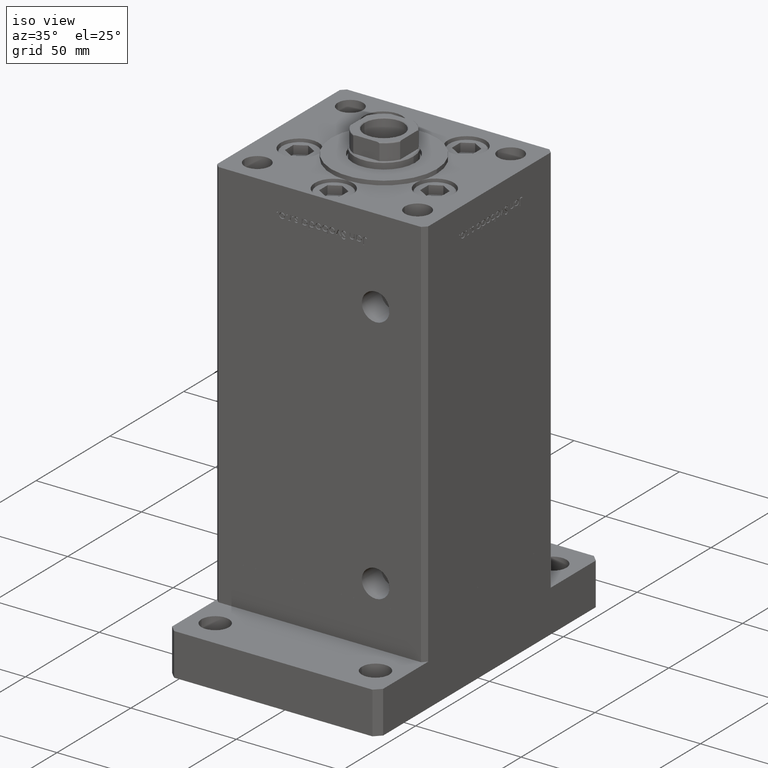
[diagram: clean part render]
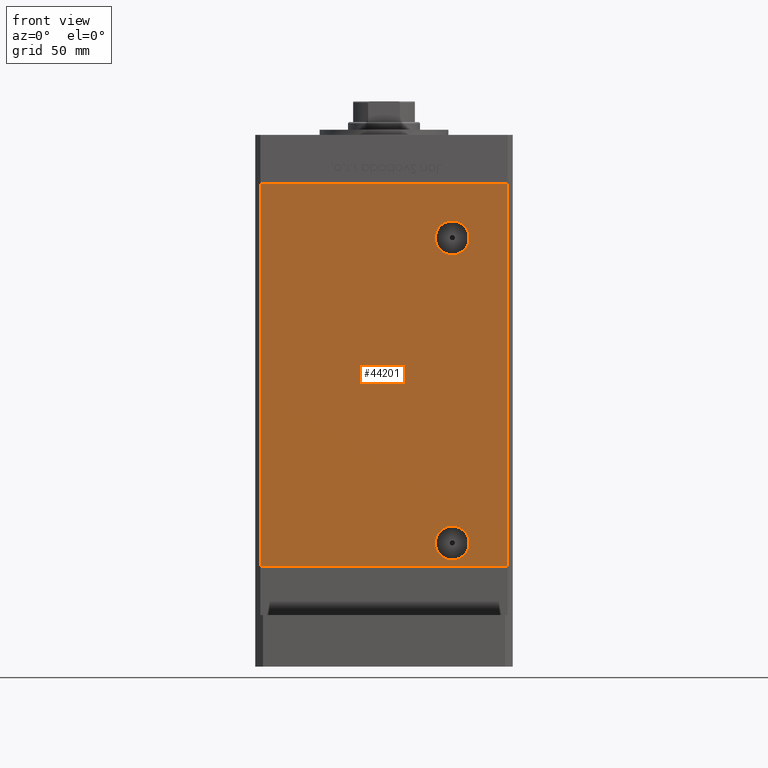
[diagram: tour spotlight — one face highlighted and labeled with its STEP entity id]
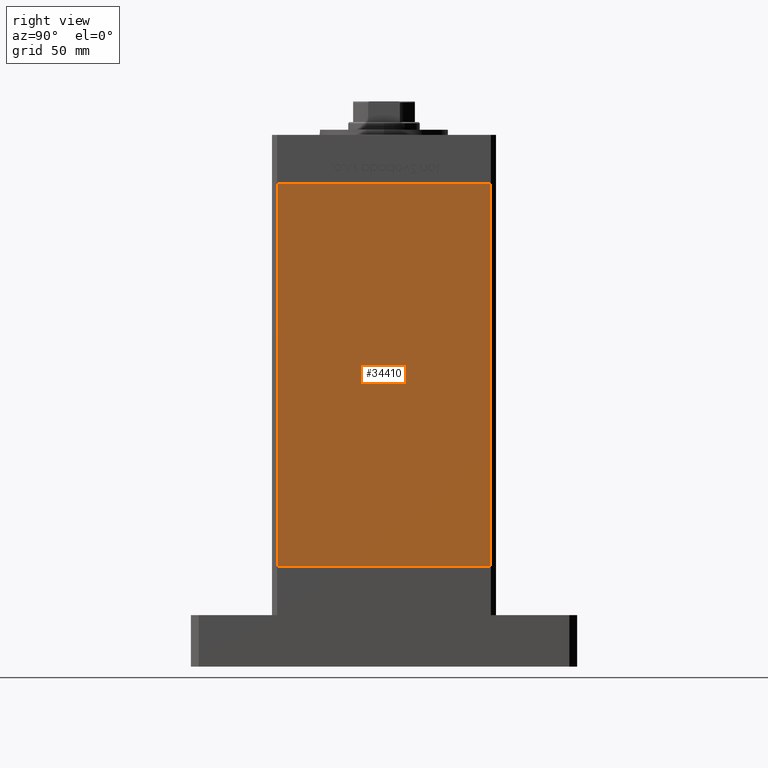
[diagram: tour spotlight — one face highlighted and labeled with its STEP entity id]
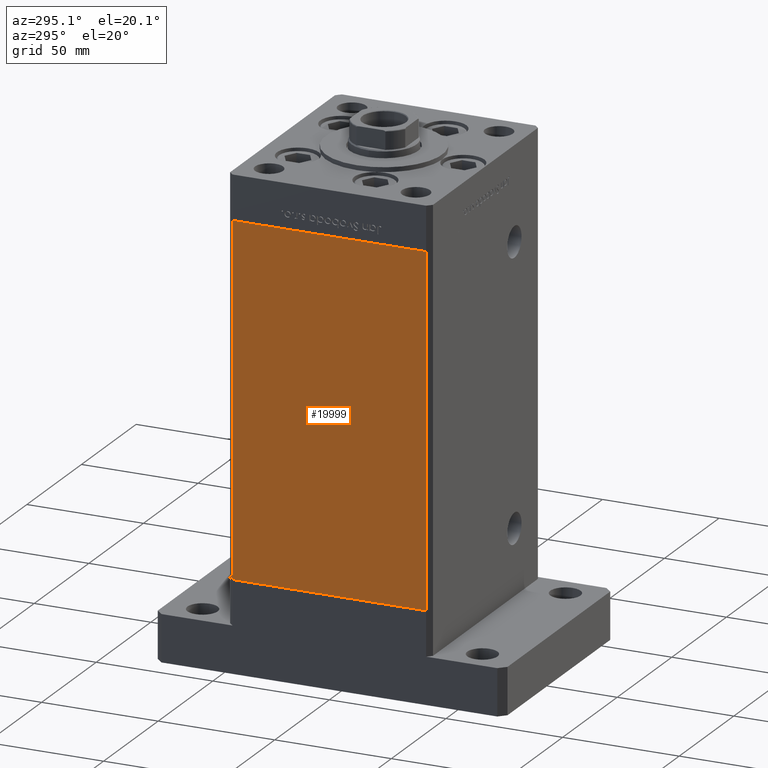
[diagram: tour spotlight — one face highlighted and labeled with its STEP entity id]
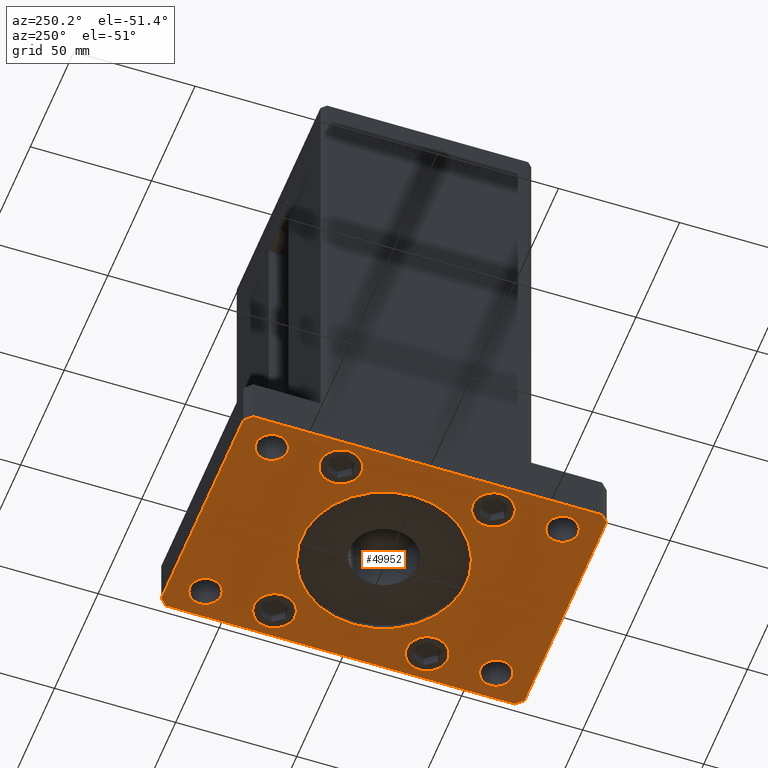
[diagram: tour spotlight — one face highlighted and labeled with its STEP entity id]
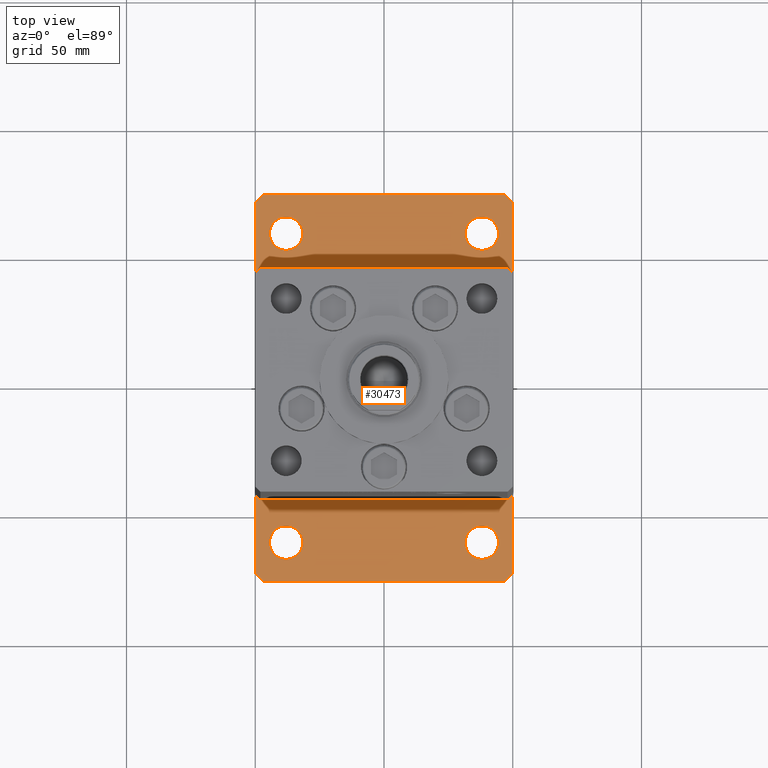
[diagram: tour spotlight — one face highlighted and labeled with its STEP entity id]
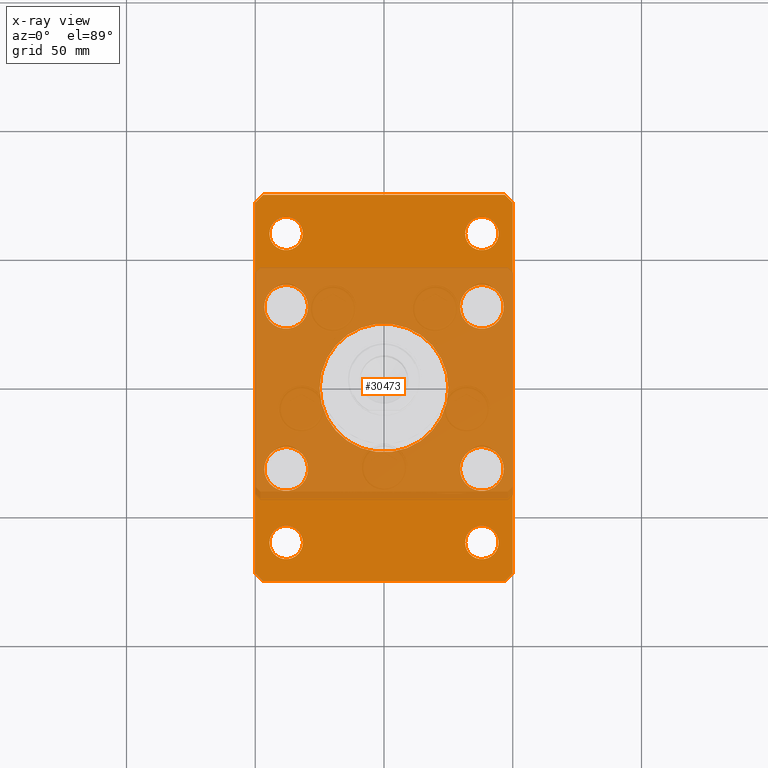
[diagram: x-ray of the same camera — body ghosted, this tour face saturated]
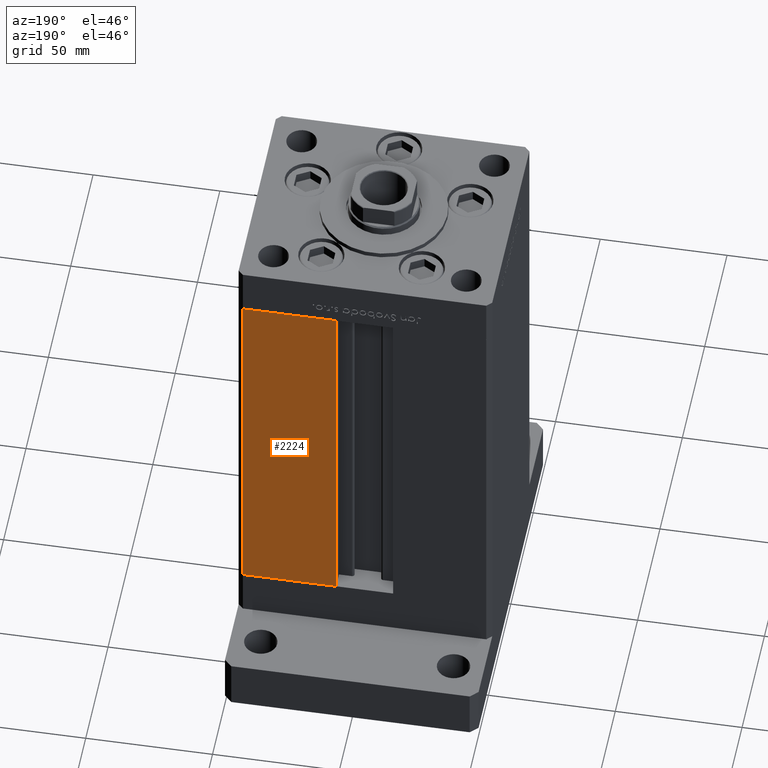
[diagram: tour spotlight — one face highlighted and labeled with its STEP entity id]
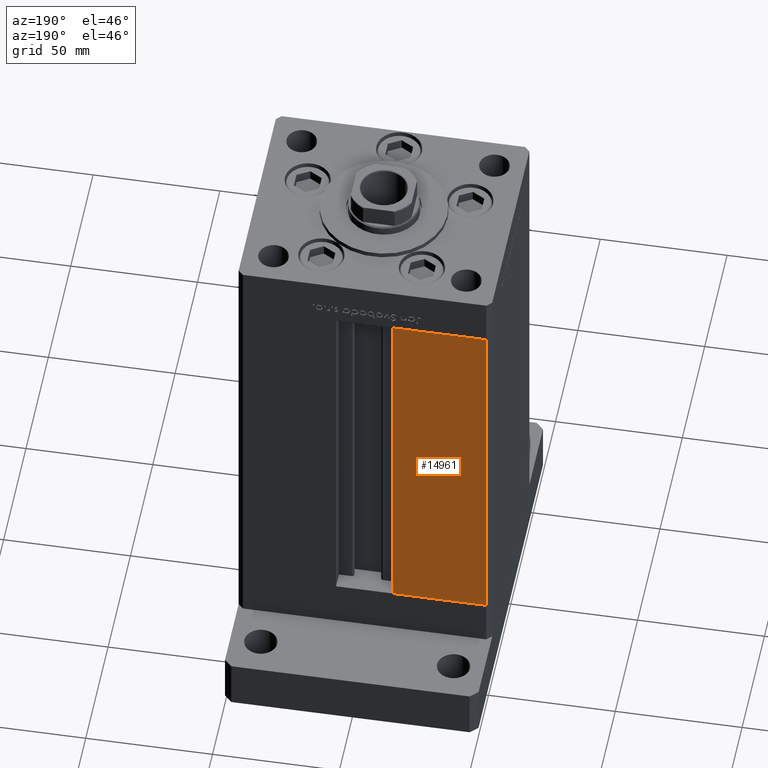
[diagram: tour spotlight — one face highlighted and labeled with its STEP entity id]
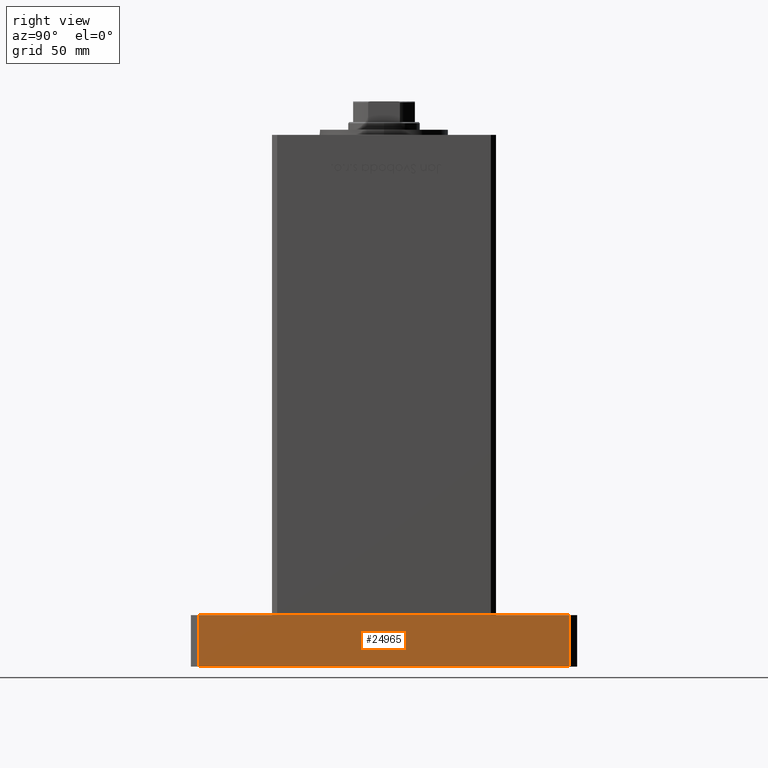
[diagram: tour spotlight — one face highlighted and labeled with its STEP entity id]
A machine part: a face-by-face anatomy tour. The part has 1310 B-rep faces; the first image is the clean iso view, then the 8 largest visible faces are spotlighted one at a time (largest first), each with its STEP entity span.

Face 1 — front view, entity #44201. In plain terms, the highlighted planar face has unit normal (0, 1, 0).
Definition (entity closure, byte-faithful):
#916 = DIRECTION ( 'NONE',  ( 0.000000000000000000, 1.000000000000000000, 0.000000000000000000 ) ) ;
#1628 = ORIENTED_EDGE ( 'NONE', *, *, #8839, .F. ) ;
#3936 = VERTEX_POINT ( 'NONE', #13756 ) ;
#4351 = EDGE_CURVE ( 'NONE', #46296, #48524, #5236, .T. ) ;
#5056 = LINE ( 'NONE', #42255, #30764 ) ;
#5236 = CIRCLE ( 'NONE', #35590, 6.579999999999988525 ) ;
#5390 = AXIS2_PLACEMENT_3D ( 'NONE', #7352, #23925, #15764 ) ;
#5687 = ORIENTED_EDGE ( 'NONE', *, *, #31012, .F. ) ;
#5806 = VECTOR ( 'NONE', #36260, 1000.000000000000000 ) ;
#6417 = DIRECTION ( 'NONE',  ( -0.000000000000000000, -0.000000000000000000, -1.000000000000000000 ) ) ;
#7159 = DIRECTION ( 'NONE',  ( -0.000000000000000000, 1.000000000000000000, -0.000000000000000000 ) ) ;
#7352 = CARTESIAN_POINT ( 'NONE',  ( 26.49999999999998934, -43.50000000000000000, 9.000000000000007105 ) ) ;
#7364 = VERTEX_POINT ( 'NONE', #13714 ) ;
#8031 = CARTESIAN_POINT ( 'NONE',  ( 47.99999999999998579, -43.50000000000000000, 0.000000000000000000 ) ) ;
#8649 = DIRECTION ( 'NONE',  ( 0.000000000000000000, 0.000000000000000000, -1.000000000000000000 ) ) ;
#8675 = CARTESIAN_POINT ( 'NONE',  ( 26.49999999999997513, -43.50000000000000000, 120.9200000000000159 ) ) ;
#8839 = EDGE_CURVE ( 'NONE', #48371, #7364, #34884, .T. ) ;
#8869 = CIRCLE ( 'NONE', #14952, 6.579999999999988525 ) ;
#9055 = FACE_OUTER_BOUND ( 'NONE', #13739, .T. ) ;
#9283 = DIRECTION ( 'NONE',  ( 1.000000000000000000, 0.000000000000000000, 0.000000000000000000 ) ) ;
#13714 = CARTESIAN_POINT ( 'NONE',  ( 26.49999999999998934, -43.50000000000000000, 15.58000000000000362 ) ) ;
#13739 = EDGE_LOOP ( 'NONE', ( #48493, #38658, #41375, #41472 ) ) ;
#13756 = CARTESIAN_POINT ( 'NONE',  ( -47.99999999999998579, -43.50000000000000000, 0.000000000000000000 ) ) ;
#14109 = VERTEX_POINT ( 'NONE', #8031 ) ;
#14315 = VERTEX_POINT ( 'NONE', #36229 ) ;
#14911 = DIRECTION ( 'NONE',  ( -0.000000000000000000, 1.000000000000000000, -0.000000000000000000 ) ) ;
#14942 = VECTOR ( 'NONE', #9283, 1000.000000000000000 ) ;
#14952 = AXIS2_PLACEMENT_3D ( 'NONE', #24153, #14911, #44778 ) ;
#14962 = EDGE_CURVE ( 'NONE', #48524, #46296, #8869, .T. ) ;
#15573 = CARTESIAN_POINT ( 'NONE',  ( 26.49999999999998934, -43.50000000000000000, 2.420000000000013252 ) ) ;
#15764 = DIRECTION ( 'NONE',  ( 0.000000000000000000, 0.000000000000000000, -1.000000000000000000 ) ) ;
#15889 = VECTOR ( 'NONE', #6417, 1000.000000000000000 ) ;
#17069 = CARTESIAN_POINT ( 'NONE',  ( 26.49999999999998934, -43.50000000000000000, 9.000000000000007105 ) ) ;
#20180 = DIRECTION ( 'NONE',  ( 0.000000000000000000, 0.000000000000000000, -1.000000000000000000 ) ) ;
#21279 = FACE_BOUND ( 'NONE', #38271, .T. ) ;
#21336 = EDGE_CURVE ( 'NONE', #14315, #14109, #5056, .T. ) ;
#22094 = PLANE ( 'NONE',  #39530 ) ;
#23925 = DIRECTION ( 'NONE',  ( 0.000000000000000000, -1.000000000000000000, 0.000000000000000000 ) ) ;
#24153 = CARTESIAN_POINT ( 'NONE',  ( 26.49999999999997513, -43.50000000000000000, 127.5000000000000000 ) ) ;
#25437 = DIRECTION ( 'NONE',  ( -0.000000000000000000, -0.000000000000000000, -1.000000000000000000 ) ) ;
#25634 = DIRECTION ( 'NONE',  ( 0.000000000000000000, -0.000000000000000000, 1.000000000000000000 ) ) ;
#29284 = DIRECTION ( 'NONE',  ( 0.000000000000000000, -1.000000000000000000, 0.000000000000000000 ) ) ;
#29671 = CIRCLE ( 'NONE', #52245, 6.579999999999994742 ) ;
#30002 = VERTEX_POINT ( 'NONE', #32018 ) ;
#30182 = LINE ( 'NONE', #37516, #14942 ) ;
#30309 = CARTESIAN_POINT ( 'NONE',  ( -47.99999999999998579, -43.50000000000000000, 148.5000000000000000 ) ) ;
#30764 = VECTOR ( 'NONE', #25437, 1000.000000000000000 ) ;
#31012 = EDGE_CURVE ( 'NONE', #7364, #48371, #29671, .T. ) ;
#31258 = CARTESIAN_POINT ( 'NONE',  ( 26.49999999999997513, -43.50000000000000000, 134.0800000000000125 ) ) ;
#32018 = CARTESIAN_POINT ( 'NONE',  ( -47.99999999999998579, -43.50000000000000000, 148.5000000000000000 ) ) ;
#32175 = CARTESIAN_POINT ( 'NONE',  ( -47.99999999999998579, -43.50000000000000000, 148.5000000000000000 ) ) ;
#32655 = EDGE_LOOP ( 'NONE', ( #1628, #5687 ) ) ;
#33484 = CARTESIAN_POINT ( 'NONE',  ( -47.99999999999998579, -43.50000000000000000, 148.5000000000000000 ) ) ;
#34322 = EDGE_CURVE ( 'NONE', #3936, #14109, #30182, .T. ) ;
#34383 = LINE ( 'NONE', #30309, #15889 ) ;
#34575 = ORIENTED_EDGE ( 'NONE', *, *, #14962, .T. ) ;
#34884 = CIRCLE ( 'NONE', #5390, 6.579999999999994742 ) ;
#35590 = AXIS2_PLACEMENT_3D ( 'NONE', #48696, #7159, #20180 ) ;
#36229 = CARTESIAN_POINT ( 'NONE',  ( 47.99999999999998579, -43.50000000000000000, 148.5000000000000000 ) ) ;
#36260 = DIRECTION ( 'NONE',  ( 1.000000000000000000, 0.000000000000000000, 0.000000000000000000 ) ) ;
#36678 = EDGE_CURVE ( 'NONE', #30002, #3936, #34383, .T. ) ;
#37516 = CARTESIAN_POINT ( 'NONE',  ( -47.99999999999998579, -43.50000000000000000, 0.000000000000000000 ) ) ;
#38271 = EDGE_LOOP ( 'NONE', ( #42924, #34575 ) ) ;
#38658 = ORIENTED_EDGE ( 'NONE', *, *, #21336, .F. ) ;
#39530 = AXIS2_PLACEMENT_3D ( 'NONE', #33484, #916, #25634 ) ;
#40329 = LINE ( 'NONE', #32175, #5806 ) ;
#41375 = ORIENTED_EDGE ( 'NONE', *, *, #51071, .F. ) ;
#41472 = ORIENTED_EDGE ( 'NONE', *, *, #36678, .T. ) ;
#42255 = CARTESIAN_POINT ( 'NONE',  ( 47.99999999999998579, -43.50000000000000000, 148.5000000000000000 ) ) ;
#42924 = ORIENTED_EDGE ( 'NONE', *, *, #4351, .T. ) ;
#44201 = ADVANCED_FACE ( 'NONE', ( #51131, #9055, #21279 ), #22094, .F. ) ;
#44778 = DIRECTION ( 'NONE',  ( 0.000000000000000000, 0.000000000000000000, -1.000000000000000000 ) ) ;
#46296 = VERTEX_POINT ( 'NONE', #8675 ) ;
#48371 = VERTEX_POINT ( 'NONE', #15573 ) ;
#48493 = ORIENTED_EDGE ( 'NONE', *, *, #34322, .T. ) ;
#48524 = VERTEX_POINT ( 'NONE', #31258 ) ;
#48696 = CARTESIAN_POINT ( 'NONE',  ( 26.49999999999997513, -43.50000000000000000, 127.5000000000000000 ) ) ;
#51071 = EDGE_CURVE ( 'NONE', #30002, #14315, #40329, .T. ) ;
#51131 = FACE_BOUND ( 'NONE', #32655, .T. ) ;
#52245 = AXIS2_PLACEMENT_3D ( 'NONE', #17069, #29284, #8649 ) ;

Face 2 — right view, entity #34410. In plain terms, the highlighted planar face has unit normal (1, -0, 0).
Definition (entity closure, byte-faithful):
#2213 = VECTOR ( 'NONE', #9384, 1000.000000000000000 ) ;
#3812 = VERTEX_POINT ( 'NONE', #31989 ) ;
#4869 = CARTESIAN_POINT ( 'NONE',  ( 50.00000000000001421, 41.49999999999999289, 148.5000000000000000 ) ) ;
#6557 = PLANE ( 'NONE',  #29666 ) ;
#8194 = ORIENTED_EDGE ( 'NONE', *, *, #37232, .F. ) ;
#9094 = LINE ( 'NONE', #46288, #29989 ) ;
#9133 = EDGE_LOOP ( 'NONE', ( #23448, #8194, #11410, #43239 ) ) ;
#9384 = DIRECTION ( 'NONE',  ( -3.344045254895050973E-16, -1.000000000000000000, 0.000000000000000000 ) ) ;
#10449 = VERTEX_POINT ( 'NONE', #28793 ) ;
#10631 = CARTESIAN_POINT ( 'NONE',  ( 50.00000000000001421, 41.49999999999999289, 0.000000000000000000 ) ) ;
#11410 = ORIENTED_EDGE ( 'NONE', *, *, #22818, .T. ) ;
#11707 = CARTESIAN_POINT ( 'NONE',  ( 49.99999999999998579, -41.49999999999999289, 148.5000000000000000 ) ) ;
#12639 = LINE ( 'NONE', #29208, #2213 ) ;
#13155 = DIRECTION ( 'NONE',  ( -3.344045254895050973E-16, -1.000000000000000000, 0.000000000000000000 ) ) ;
#17359 = DIRECTION ( 'NONE',  ( -0.000000000000000000, -0.000000000000000000, -1.000000000000000000 ) ) ;
#22818 = EDGE_CURVE ( 'NONE', #48467, #10449, #12639, .T. ) ;
#23119 = CARTESIAN_POINT ( 'NONE',  ( 50.00000000000001421, 41.49999999999999289, 148.5000000000000000 ) ) ;
#23448 = ORIENTED_EDGE ( 'NONE', *, *, #29246, .F. ) ;
#28793 = CARTESIAN_POINT ( 'NONE',  ( 49.99999999999998579, -41.49999999999999289, 148.5000000000000000 ) ) ;
#28932 = VECTOR ( 'NONE', #17359, 1000.000000000000000 ) ;
#29208 = CARTESIAN_POINT ( 'NONE',  ( 50.00000000000001421, 41.49999999999999289, 148.5000000000000000 ) ) ;
#29246 = EDGE_CURVE ( 'NONE', #29633, #3812, #9094, .T. ) ;
#29633 = VERTEX_POINT ( 'NONE', #10631 ) ;
#29666 = AXIS2_PLACEMENT_3D ( 'NONE', #23119, #48088, #39409 ) ;
#29924 = CARTESIAN_POINT ( 'NONE',  ( 50.00000000000001421, 41.49999999999999289, 148.5000000000000000 ) ) ;
#29989 = VECTOR ( 'NONE', #13155, 1000.000000000000000 ) ;
#31989 = CARTESIAN_POINT ( 'NONE',  ( 49.99999999999998579, -41.49999999999999289, 0.000000000000000000 ) ) ;
#32603 = DIRECTION ( 'NONE',  ( -0.000000000000000000, -0.000000000000000000, -1.000000000000000000 ) ) ;
#33905 = LINE ( 'NONE', #4869, #28932 ) ;
#34410 = ADVANCED_FACE ( 'NONE', ( #35598 ), #6557, .T. ) ;
#35598 = FACE_OUTER_BOUND ( 'NONE', #9133, .T. ) ;
#37232 = EDGE_CURVE ( 'NONE', #48467, #29633, #33905, .T. ) ;
#39409 = DIRECTION ( 'NONE',  ( 3.344045254895050480E-16, 1.000000000000000000, 0.000000000000000000 ) ) ;
#43239 = ORIENTED_EDGE ( 'NONE', *, *, #48682, .T. ) ;
#46288 = CARTESIAN_POINT ( 'NONE',  ( 50.00000000000001421, 41.49999999999999289, 0.000000000000000000 ) ) ;
#48088 = DIRECTION ( 'NONE',  ( 1.000000000000000000, -3.344045254895050480E-16, 0.000000000000000000 ) ) ;
#48241 = VECTOR ( 'NONE', #32603, 1000.000000000000000 ) ;
#48467 = VERTEX_POINT ( 'NONE', #29924 ) ;
#48682 = EDGE_CURVE ( 'NONE', #10449, #3812, #48904, .T. ) ;
#48904 = LINE ( 'NONE', #11707, #48241 ) ;

Face 3 — auxiliary view, entity #19999. In plain terms, the highlighted planar face has unit normal (1, 0, 0).
Definition (entity closure, byte-faithful):
#1191 = EDGE_CURVE ( 'NONE', #6007, #10996, #38707, .T. ) ;
#1744 = EDGE_LOOP ( 'NONE', ( #20836, #8220, #37949, #7931 ) ) ;
#1778 = CARTESIAN_POINT ( 'NONE',  ( -50.00000000000001421, 41.49999999999999289, 148.5000000000000000 ) ) ;
#2423 = CARTESIAN_POINT ( 'NONE',  ( -50.00000000000001421, 41.49999999999999289, 148.5000000000000000 ) ) ;
#2989 = AXIS2_PLACEMENT_3D ( 'NONE', #40441, #3254, #52390 ) ;
#3254 = DIRECTION ( 'NONE',  ( 1.000000000000000000, 3.344045254895050480E-16, -0.000000000000000000 ) ) ;
#5223 = CARTESIAN_POINT ( 'NONE',  ( -50.00000000000001421, 41.49999999999999289, 0.000000000000000000 ) ) ;
#5456 = EDGE_CURVE ( 'NONE', #10996, #38922, #49760, .T. ) ;
#6007 = VERTEX_POINT ( 'NONE', #2423 ) ;
#7931 = ORIENTED_EDGE ( 'NONE', *, *, #1191, .T. ) ;
#8089 = VECTOR ( 'NONE', #17155, 1000.000000000000000 ) ;
#8220 = ORIENTED_EDGE ( 'NONE', *, *, #29651, .F. ) ;
#8734 = CARTESIAN_POINT ( 'NONE',  ( -50.00000000000001421, 41.49999999999999289, 148.5000000000000000 ) ) ;
#10900 = CARTESIAN_POINT ( 'NONE',  ( -49.99999999999998579, -41.49999999999999289, 148.5000000000000000 ) ) ;
#10996 = VERTEX_POINT ( 'NONE', #46155 ) ;
#17155 = DIRECTION ( 'NONE',  ( 3.344045254895050973E-16, -1.000000000000000000, 0.000000000000000000 ) ) ;
#18007 = CARTESIAN_POINT ( 'NONE',  ( -49.99999999999998579, -41.49999999999999289, 0.000000000000000000 ) ) ;
#19999 = ADVANCED_FACE ( 'NONE', ( #23886 ), #40705, .F. ) ;
#20836 = ORIENTED_EDGE ( 'NONE', *, *, #5456, .T. ) ;
#23886 = FACE_OUTER_BOUND ( 'NONE', #1744, .T. ) ;
#24767 = LINE ( 'NONE', #8734, #8089 ) ;
#29651 = EDGE_CURVE ( 'NONE', #42135, #38922, #51369, .T. ) ;
#29654 = DIRECTION ( 'NONE',  ( 3.344045254895050973E-16, -1.000000000000000000, 0.000000000000000000 ) ) ;
#31276 = VECTOR ( 'NONE', #29654, 1000.000000000000000 ) ;
#33287 = EDGE_CURVE ( 'NONE', #6007, #42135, #24767, .T. ) ;
#34330 = VECTOR ( 'NONE', #44022, 1000.000000000000000 ) ;
#36369 = VECTOR ( 'NONE', #50378, 1000.000000000000000 ) ;
#37949 = ORIENTED_EDGE ( 'NONE', *, *, #33287, .F. ) ;
#38707 = LINE ( 'NONE', #1778, #36369 ) ;
#38922 = VERTEX_POINT ( 'NONE', #18007 ) ;
#40441 = CARTESIAN_POINT ( 'NONE',  ( -50.00000000000001421, 41.49999999999999289, 148.5000000000000000 ) ) ;
#40705 = PLANE ( 'NONE',  #2989 ) ;
#42135 = VERTEX_POINT ( 'NONE', #49442 ) ;
#44022 = DIRECTION ( 'NONE',  ( -0.000000000000000000, -0.000000000000000000, -1.000000000000000000 ) ) ;
#46155 = CARTESIAN_POINT ( 'NONE',  ( -50.00000000000001421, 41.49999999999999289, 0.000000000000000000 ) ) ;
#49442 = CARTESIAN_POINT ( 'NONE',  ( -49.99999999999998579, -41.49999999999999289, 148.5000000000000000 ) ) ;
#49760 = LINE ( 'NONE', #5223, #31276 ) ;
#50378 = DIRECTION ( 'NONE',  ( -0.000000000000000000, -0.000000000000000000, -1.000000000000000000 ) ) ;
#51369 = LINE ( 'NONE', #10900, #34330 ) ;
#52390 = DIRECTION ( 'NONE',  ( -3.344045254895050480E-16, 1.000000000000000000, 0.000000000000000000 ) ) ;

Face 4 — auxiliary view, entity #49952. In plain terms, the highlighted planar face has unit normal (0, 0, 1).
Definition (entity closure, byte-faithful):
#32 = EDGE_CURVE ( 'NONE', #45440, #5875, #8570, .T. ) ;
#187 = DIRECTION ( 'NONE',  ( 1.000000000000000000, 0.000000000000000000, 0.000000000000000000 ) ) ;
#262 = VECTOR ( 'NONE', #47807, 999.9999999999998863 ) ;
#305 = AXIS2_PLACEMENT_3D ( 'NONE', #29102, #9005, #9276 ) ;
#392 = AXIS2_PLACEMENT_3D ( 'NONE', #6132, #2055, #25962 ) ;
#724 = FACE_OUTER_BOUND ( 'NONE', #14278, .T. ) ;
#987 = DIRECTION ( 'NONE',  ( 0.000000000000000000, 0.000000000000000000, 1.000000000000000000 ) ) ;
#1234 = VECTOR ( 'NONE', #23698, 1000.000000000000000 ) ;
#1256 = DIRECTION ( 'NONE',  ( 0.000000000000000000, 0.000000000000000000, 1.000000000000000000 ) ) ;
#1782 = ORIENTED_EDGE ( 'NONE', *, *, #46430, .T. ) ;
#2003 = CARTESIAN_POINT ( 'NONE',  ( 29.49999999999999645, -31.49999999999999289, 0.000000000000000000 ) ) ;
#2055 = DIRECTION ( 'NONE',  ( 0.000000000000000000, 0.000000000000000000, 1.000000000000000000 ) ) ;
#2407 = EDGE_CURVE ( 'NONE', #23266, #51759, #8642, .T. ) ;
#2517 = CARTESIAN_POINT ( 'NONE',  ( -49.99999999999998579, -72.00000000000001421, 0.000000000000000000 ) ) ;
#2823 = VECTOR ( 'NONE', #34868, 1000.000000000000114 ) ;
#2828 = CIRCLE ( 'NONE', #51352, 8.499999999999992895 ) ;
#3159 = EDGE_CURVE ( 'NONE', #22669, #36391, #27767, .T. ) ;
#3372 = VERTEX_POINT ( 'NONE', #49283 ) ;
#3611 = VERTEX_POINT ( 'NONE', #49678 ) ;
#3772 = DIRECTION ( 'NONE',  ( -1.000000000000000000, 0.000000000000000000, 0.000000000000000000 ) ) ;
#3869 = DIRECTION ( 'NONE',  ( 1.000000000000000000, 0.000000000000000000, 0.000000000000000000 ) ) ;
#3980 = CIRCLE ( 'NONE', #31734, 8.500000000000000000 ) ;
#3984 = CARTESIAN_POINT ( 'NONE',  ( 37.99999999999997868, -60.00000000000000711, 0.000000000000000000 ) ) ;
#4304 = CARTESIAN_POINT ( 'NONE',  ( -47.00000000000002842, 75.00000000000002842, 0.000000000000000000 ) ) ;
#4487 = VECTOR ( 'NONE', #8583, 1000.000000000000114 ) ;
#5038 = CARTESIAN_POINT ( 'NONE',  ( -31.49999999999997868, -60.00000000000000711, 0.000000000000000000 ) ) ;
#5053 = FACE_BOUND ( 'NONE', #14187, .T. ) ;
#5593 = CARTESIAN_POINT ( 'NONE',  ( -50.00000000000001421, 72.00000000000000000, 0.000000000000000000 ) ) ;
#5875 = VERTEX_POINT ( 'NONE', #12287 ) ;
#6104 = LINE ( 'NONE', #27802, #2823 ) ;
#6132 = CARTESIAN_POINT ( 'NONE',  ( -38.00000000000000711, -31.50000000000000000, 0.000000000000000000 ) ) ;
#6258 = DIRECTION ( 'NONE',  ( 1.000000000000000000, 0.000000000000000000, 0.000000000000000000 ) ) ;
#6528 = ORIENTED_EDGE ( 'NONE', *, *, #35139, .F. ) ;
#7099 = AXIS2_PLACEMENT_3D ( 'NONE', #21509, #17159, #3869 ) ;
#7469 = VERTEX_POINT ( 'NONE', #40302 ) ;
#7621 = ORIENTED_EDGE ( 'NONE', *, *, #20544, .T. ) ;
#8570 = CIRCLE ( 'NONE', #17252, 6.499999999999999112 ) ;
#8583 = DIRECTION ( 'NONE',  ( 0.7071067811865474617, -0.7071067811865474617, 0.000000000000000000 ) ) ;
#8642 = CIRCLE ( 'NONE', #28608, 8.500000000000000000 ) ;
#8647 = EDGE_CURVE ( 'NONE', #32590, #23122, #21836, .T. ) ;
#8655 = DIRECTION ( 'NONE',  ( -0.7071067811865425767, -0.7071067811865525687, 0.000000000000000000 ) ) ;
#9005 = DIRECTION ( 'NONE',  ( 0.000000000000000000, 0.000000000000000000, 1.000000000000000000 ) ) ;
#9276 = DIRECTION ( 'NONE',  ( 1.000000000000000000, 0.000000000000000000, 0.000000000000000000 ) ) ;
#9436 = CARTESIAN_POINT ( 'NONE',  ( 47.00000000000002132, 75.00000000000002842, 0.000000000000000000 ) ) ;
#9526 = EDGE_CURVE ( 'NONE', #30765, #16876, #38068, .T. ) ;
#9915 = AXIS2_PLACEMENT_3D ( 'NONE', #31546, #48390, #11188 ) ;
#10085 = ORIENTED_EDGE ( 'NONE', *, *, #14495, .T. ) ;
#10513 = CARTESIAN_POINT ( 'NONE',  ( 47.00000000000001421, -74.99999999999988631, 0.000000000000000000 ) ) ;
#10837 = CARTESIAN_POINT ( 'NONE',  ( 29.49999999999999645, 31.49999999999999289, 0.000000000000000000 ) ) ;
#11188 = DIRECTION ( 'NONE',  ( 1.000000000000000000, 0.000000000000000000, 0.000000000000000000 ) ) ;
#11289 = VERTEX_POINT ( 'NONE', #52648 ) ;
#11460 = EDGE_CURVE ( 'NONE', #31943, #11289, #31333, .T. ) ;
#11987 = CARTESIAN_POINT ( 'NONE',  ( -31.49999999999999289, 59.99999999999999289, 0.000000000000000000 ) ) ;
#12123 = FACE_BOUND ( 'NONE', #27183, .T. ) ;
#12287 = CARTESIAN_POINT ( 'NONE',  ( 31.49999999999997868, -60.00000000000000711, 0.000000000000000000 ) ) ;
#12423 = VERTEX_POINT ( 'NONE', #10513 ) ;
#12652 = AXIS2_PLACEMENT_3D ( 'NONE', #21885, #29753, #34633 ) ;
#12746 = ORIENTED_EDGE ( 'NONE', *, *, #26767, .F. ) ;
#12763 = EDGE_CURVE ( 'NONE', #38623, #3611, #51358, .T. ) ;
#12830 = DIRECTION ( 'NONE',  ( 0.000000000000000000, 0.000000000000000000, -1.000000000000000000 ) ) ;
#13240 = EDGE_CURVE ( 'NONE', #31840, #47151, #32758, .T. ) ;
#13477 = DIRECTION ( 'NONE',  ( 0.000000000000000000, 0.000000000000000000, 1.000000000000000000 ) ) ;
#14025 = CARTESIAN_POINT ( 'NONE',  ( -47.00000000000000000, -75.00000000000000000, 0.000000000000000000 ) ) ;
#14060 = DIRECTION ( 'NONE',  ( 0.000000000000000000, 0.000000000000000000, 1.000000000000000000 ) ) ;
#14089 = DIRECTION ( 'NONE',  ( 0.000000000000000000, 0.000000000000000000, 1.000000000000000000 ) ) ;
#14187 = EDGE_LOOP ( 'NONE', ( #40192, #17067 ) ) ;
#14278 = EDGE_LOOP ( 'NONE', ( #12746, #49384, #39422, #28138, #37595, #27869, #37502, #6528 ) ) ;
#14490 = AXIS2_PLACEMENT_3D ( 'NONE', #47494, #14089, #35261 ) ;
#14495 = EDGE_CURVE ( 'NONE', #22119, #42067, #23654, .T. ) ;
#14522 = DIRECTION ( 'NONE',  ( -1.000000000000000000, 0.000000000000000000, 0.000000000000000000 ) ) ;
#14760 = DIRECTION ( 'NONE',  ( 1.000000000000000000, 0.000000000000000000, 0.000000000000000000 ) ) ;
#14940 = CARTESIAN_POINT ( 'NONE',  ( -46.50000000000000711, 31.50000000000000000, 0.000000000000000000 ) ) ;
#15454 = VERTEX_POINT ( 'NONE', #23414 ) ;
#16085 = EDGE_CURVE ( 'NONE', #23122, #32590, #41844, .T. ) ;
#16631 = DIRECTION ( 'NONE',  ( 0.000000000000000000, 1.000000000000000000, 0.000000000000000000 ) ) ;
#16805 = ORIENTED_EDGE ( 'NONE', *, *, #31282, .T. ) ;
#16876 = VERTEX_POINT ( 'NONE', #43737 ) ;
#17004 = FACE_BOUND ( 'NONE', #45925, .T. ) ;
#17067 = ORIENTED_EDGE ( 'NONE', *, *, #2407, .T. ) ;
#17078 = CIRCLE ( 'NONE', #14490, 8.499999999999992895 ) ;
#17159 = DIRECTION ( 'NONE',  ( 0.000000000000000000, 0.000000000000000000, 1.000000000000000000 ) ) ;
#17252 = AXIS2_PLACEMENT_3D ( 'NONE', #44079, #18580, #14760 ) ;
#18564 = CIRCLE ( 'NONE', #9915, 6.499999999999999112 ) ;
#18580 = DIRECTION ( 'NONE',  ( 0.000000000000000000, 0.000000000000000000, 1.000000000000000000 ) ) ;
#18702 = VERTEX_POINT ( 'NONE', #51845 ) ;
#18945 = DIRECTION ( 'NONE',  ( 1.000000000000000000, 0.000000000000000000, 0.000000000000000000 ) ) ;
#19148 = ORIENTED_EDGE ( 'NONE', *, *, #16085, .T. ) ;
#19574 = ORIENTED_EDGE ( 'NONE', *, *, #3159, .T. ) ;
#20129 = EDGE_CURVE ( 'NONE', #18702, #3372, #20304, .T. ) ;
#20304 = CIRCLE ( 'NONE', #28147, 34.00000000000000000 ) ;
#20544 = EDGE_CURVE ( 'NONE', #15454, #51061, #27257, .T. ) ;
#20709 = ORIENTED_EDGE ( 'NONE', *, *, #8647, .T. ) ;
#20713 = DIRECTION ( 'NONE',  ( -1.000000000000000000, 0.000000000000000000, 0.000000000000000000 ) ) ;
#20788 = EDGE_LOOP ( 'NONE', ( #21062, #41140 ) ) ;
#21040 = EDGE_CURVE ( 'NONE', #11289, #7469, #41503, .T. ) ;
#21062 = ORIENTED_EDGE ( 'NONE', *, *, #20129, .F. ) ;
#21509 = CARTESIAN_POINT ( 'NONE',  ( 37.99999999999999289, -31.49999999999999289, 0.000000000000000000 ) ) ;
#21743 = CARTESIAN_POINT ( 'NONE',  ( -29.50000000000000711, 31.50000000000000000, 0.000000000000000000 ) ) ;
#21836 = CIRCLE ( 'NONE', #7099, 8.499999999999992895 ) ;
#21885 = CARTESIAN_POINT ( 'NONE',  ( -37.99999999999997868, -60.00000000000000711, 0.000000000000000000 ) ) ;
#21911 = VECTOR ( 'NONE', #14522, 1000.000000000000000 ) ;
#22075 = CARTESIAN_POINT ( 'NONE',  ( -37.99999999999999289, 59.99999999999999289, 0.000000000000000000 ) ) ;
#22119 = VERTEX_POINT ( 'NONE', #43496 ) ;
#22669 = VERTEX_POINT ( 'NONE', #27084 ) ;
#23122 = VERTEX_POINT ( 'NONE', #48184 ) ;
#23212 = AXIS2_PLACEMENT_3D ( 'NONE', #37907, #987, #41975 ) ;
#23266 = VERTEX_POINT ( 'NONE', #21743 ) ;
#23414 = CARTESIAN_POINT ( 'NONE',  ( -46.50000000000000711, -31.50000000000000000, 0.000000000000000000 ) ) ;
#23654 = CIRCLE ( 'NONE', #27955, 6.499999999999999112 ) ;
#23698 = DIRECTION ( 'NONE',  ( 1.927470528863118802E-16, -1.000000000000000000, 0.000000000000000000 ) ) ;
#24309 = CARTESIAN_POINT ( 'NONE',  ( -29.50000000000000711, -31.50000000000000000, 0.000000000000000000 ) ) ;
#24696 = CARTESIAN_POINT ( 'NONE',  ( 44.49999999999997868, -60.00000000000000711, 0.000000000000000000 ) ) ;
#24865 = ORIENTED_EDGE ( 'NONE', *, *, #26953, .T. ) ;
#25300 = EDGE_LOOP ( 'NONE', ( #1782, #16805 ) ) ;
#25433 = FACE_BOUND ( 'NONE', #25300, .T. ) ;
#25757 = DIRECTION ( 'NONE',  ( 0.000000000000000000, 0.000000000000000000, -1.000000000000000000 ) ) ;
#25962 = DIRECTION ( 'NONE',  ( 1.000000000000000000, 0.000000000000000000, 0.000000000000000000 ) ) ;
#25978 = EDGE_CURVE ( 'NONE', #51061, #15454, #3980, .T. ) ;
#25984 = CARTESIAN_POINT ( 'NONE',  ( 38.00000000000000000, 59.99999999999998579, 0.000000000000000000 ) ) ;
#26023 = DIRECTION ( 'NONE',  ( 1.000000000000000000, 0.000000000000000000, 0.000000000000000000 ) ) ;
#26295 = AXIS2_PLACEMENT_3D ( 'NONE', #40652, #48267, #18945 ) ;
#26405 = DIRECTION ( 'NONE',  ( 0.000000000000000000, 0.000000000000000000, 1.000000000000000000 ) ) ;
#26767 = EDGE_CURVE ( 'NONE', #47151, #12423, #33455, .T. ) ;
#26869 = EDGE_CURVE ( 'NONE', #3372, #18702, #37002, .T. ) ;
#26953 = EDGE_CURVE ( 'NONE', #5875, #45440, #30068, .T. ) ;
#27084 = CARTESIAN_POINT ( 'NONE',  ( 44.50000000000000000, 59.99999999999998579, 0.000000000000000000 ) ) ;
#27183 = EDGE_LOOP ( 'NONE', ( #41052, #19574 ) ) ;
#27257 = CIRCLE ( 'NONE', #392, 8.500000000000000000 ) ;
#27767 = CIRCLE ( 'NONE', #48542, 6.499999999999999112 ) ;
#27802 = CARTESIAN_POINT ( 'NONE',  ( 47.00000000000001421, -74.99999999999988631, 0.000000000000000000 ) ) ;
#27807 = EDGE_LOOP ( 'NONE', ( #20709, #19148 ) ) ;
#27869 = ORIENTED_EDGE ( 'NONE', *, *, #37088, .F. ) ;
#27955 = AXIS2_PLACEMENT_3D ( 'NONE', #22075, #51919, #51387 ) ;
#28015 = ORIENTED_EDGE ( 'NONE', *, *, #32, .T. ) ;
#28138 = ORIENTED_EDGE ( 'NONE', *, *, #21040, .F. ) ;
#28147 = AXIS2_PLACEMENT_3D ( 'NONE', #29813, #25757, #3772 ) ;
#28608 = AXIS2_PLACEMENT_3D ( 'NONE', #42652, #42929, #51072 ) ;
#28613 = CARTESIAN_POINT ( 'NONE',  ( 50.00000000000000000, -71.99999999999988631, 0.000000000000000000 ) ) ;
#29102 = CARTESIAN_POINT ( 'NONE',  ( -37.99999999999999289, 59.99999999999999289, 0.000000000000000000 ) ) ;
#29486 = FACE_BOUND ( 'NONE', #40623, .T. ) ;
#29753 = DIRECTION ( 'NONE',  ( 0.000000000000000000, 0.000000000000000000, 1.000000000000000000 ) ) ;
#29758 = PLANE ( 'NONE',  #23212 ) ;
#29813 = CARTESIAN_POINT ( 'NONE',  ( 0.000000000000000000, 0.000000000000000000, 0.000000000000000000 ) ) ;
#30068 = CIRCLE ( 'NONE', #38727, 6.499999999999999112 ) ;
#30765 = VERTEX_POINT ( 'NONE', #28613 ) ;
#30955 = DIRECTION ( 'NONE',  ( 0.000000000000000000, 0.000000000000000000, 1.000000000000000000 ) ) ;
#31282 = EDGE_CURVE ( 'NONE', #50151, #41214, #2828, .T. ) ;
#31333 = LINE ( 'NONE', #9436, #21911 ) ;
#31546 = CARTESIAN_POINT ( 'NONE',  ( 38.00000000000000000, 59.99999999999998579, 0.000000000000000000 ) ) ;
#31734 = AXIS2_PLACEMENT_3D ( 'NONE', #42955, #26405, #35867 ) ;
#31782 = LINE ( 'NONE', #51616, #262 ) ;
#31840 = VERTEX_POINT ( 'NONE', #2517 ) ;
#31943 = VERTEX_POINT ( 'NONE', #34235 ) ;
#32222 = ORIENTED_EDGE ( 'NONE', *, *, #33292, .T. ) ;
#32590 = VERTEX_POINT ( 'NONE', #2003 ) ;
#32758 = LINE ( 'NONE', #33013, #4487 ) ;
#33013 = CARTESIAN_POINT ( 'NONE',  ( -49.99999999999998579, -72.00000000000001421, 0.000000000000000000 ) ) ;
#33292 = EDGE_CURVE ( 'NONE', #42067, #22119, #38446, .T. ) ;
#33455 = LINE ( 'NONE', #45149, #41296 ) ;
#33975 = AXIS2_PLACEMENT_3D ( 'NONE', #35034, #30955, #6258 ) ;
#34235 = CARTESIAN_POINT ( 'NONE',  ( 47.00000000000002132, 75.00000000000002842, 0.000000000000000000 ) ) ;
#34633 = DIRECTION ( 'NONE',  ( 1.000000000000000000, 0.000000000000000000, 0.000000000000000000 ) ) ;
#34868 = DIRECTION ( 'NONE',  ( 0.7071067811865459074, 0.7071067811865491270, 0.000000000000000000 ) ) ;
#34906 = DIRECTION ( 'NONE',  ( 1.000000000000000000, 0.000000000000000000, 0.000000000000000000 ) ) ;
#35034 = CARTESIAN_POINT ( 'NONE',  ( -37.99999999999997868, -60.00000000000000711, 0.000000000000000000 ) ) ;
#35139 = EDGE_CURVE ( 'NONE', #12423, #30765, #6104, .T. ) ;
#35261 = DIRECTION ( 'NONE',  ( 1.000000000000000000, 0.000000000000000000, 0.000000000000000000 ) ) ;
#35769 = FACE_BOUND ( 'NONE', #20788, .T. ) ;
#35867 = DIRECTION ( 'NONE',  ( 1.000000000000000000, 0.000000000000000000, 0.000000000000000000 ) ) ;
#36071 = CIRCLE ( 'NONE', #12652, 6.499999999999999112 ) ;
#36391 = VERTEX_POINT ( 'NONE', #43141 ) ;
#36512 = CARTESIAN_POINT ( 'NONE',  ( 46.49999999999998579, 31.49999999999999289, 0.000000000000000000 ) ) ;
#37002 = CIRCLE ( 'NONE', #48254, 34.00000000000000000 ) ;
#37088 = EDGE_CURVE ( 'NONE', #16876, #31943, #31782, .T. ) ;
#37092 = ORIENTED_EDGE ( 'NONE', *, *, #25978, .T. ) ;
#37502 = ORIENTED_EDGE ( 'NONE', *, *, #9526, .F. ) ;
#37595 = ORIENTED_EDGE ( 'NONE', *, *, #11460, .F. ) ;
#37907 = CARTESIAN_POINT ( 'NONE',  ( 0.000000000000000000, 0.000000000000000000, 0.000000000000000000 ) ) ;
#38068 = LINE ( 'NONE', #38337, #46158 ) ;
#38337 = CARTESIAN_POINT ( 'NONE',  ( 50.00000000000000000, -71.99999999999988631, 0.000000000000000000 ) ) ;
#38446 = CIRCLE ( 'NONE', #305, 6.499999999999999112 ) ;
#38623 = VERTEX_POINT ( 'NONE', #5038 ) ;
#38727 = AXIS2_PLACEMENT_3D ( 'NONE', #3984, #41449, #187 ) ;
#39065 = EDGE_CURVE ( 'NONE', #36391, #22669, #18564, .T. ) ;
#39422 = ORIENTED_EDGE ( 'NONE', *, *, #39870, .F. ) ;
#39423 = VECTOR ( 'NONE', #8655, 999.9999999999998863 ) ;
#39870 = EDGE_CURVE ( 'NONE', #7469, #31840, #42792, .T. ) ;
#40192 = ORIENTED_EDGE ( 'NONE', *, *, #53477, .T. ) ;
#40302 = CARTESIAN_POINT ( 'NONE',  ( -50.00000000000001421, 72.00000000000000000, 0.000000000000000000 ) ) ;
#40529 = CIRCLE ( 'NONE', #47478, 8.500000000000000000 ) ;
#40623 = EDGE_LOOP ( 'NONE', ( #10085, #32222 ) ) ;
#40652 = CARTESIAN_POINT ( 'NONE',  ( 37.99999999999999289, -31.49999999999999289, 0.000000000000000000 ) ) ;
#41052 = ORIENTED_EDGE ( 'NONE', *, *, #39065, .T. ) ;
#41081 = DIRECTION ( 'NONE',  ( 1.000000000000000000, 1.181088324069315250E-15, 0.000000000000000000 ) ) ;
#41140 = ORIENTED_EDGE ( 'NONE', *, *, #26869, .F. ) ;
#41169 = FACE_BOUND ( 'NONE', #27807, .T. ) ;
#41214 = VERTEX_POINT ( 'NONE', #10837 ) ;
#41296 = VECTOR ( 'NONE', #41081, 1000.000000000000000 ) ;
#41343 = CARTESIAN_POINT ( 'NONE',  ( 0.000000000000000000, 0.000000000000000000, 0.000000000000000000 ) ) ;
#41449 = DIRECTION ( 'NONE',  ( 0.000000000000000000, 0.000000000000000000, 1.000000000000000000 ) ) ;
#41455 = DIRECTION ( 'NONE',  ( 1.000000000000000000, 0.000000000000000000, 0.000000000000000000 ) ) ;
#41503 = LINE ( 'NONE', #4304, #39423 ) ;
#41700 = FACE_BOUND ( 'NONE', #53682, .T. ) ;
#41844 = CIRCLE ( 'NONE', #26295, 8.499999999999992895 ) ;
#41975 = DIRECTION ( 'NONE',  ( 1.000000000000000000, 0.000000000000000000, -0.000000000000000000 ) ) ;
#42067 = VERTEX_POINT ( 'NONE', #11987 ) ;
#42572 = CARTESIAN_POINT ( 'NONE',  ( -38.00000000000000711, 31.50000000000000000, 0.000000000000000000 ) ) ;
#42652 = CARTESIAN_POINT ( 'NONE',  ( -38.00000000000000711, 31.50000000000000000, 0.000000000000000000 ) ) ;
#42792 = LINE ( 'NONE', #5593, #1234 ) ;
#42793 = ORIENTED_EDGE ( 'NONE', *, *, #12763, .T. ) ;
#42929 = DIRECTION ( 'NONE',  ( 0.000000000000000000, 0.000000000000000000, 1.000000000000000000 ) ) ;
#42955 = CARTESIAN_POINT ( 'NONE',  ( -38.00000000000000711, -31.50000000000000000, 0.000000000000000000 ) ) ;
#43141 = CARTESIAN_POINT ( 'NONE',  ( 31.50000000000000000, 59.99999999999998579, 0.000000000000000000 ) ) ;
#43496 = CARTESIAN_POINT ( 'NONE',  ( -44.49999999999999289, 59.99999999999999289, 0.000000000000000000 ) ) ;
#43737 = CARTESIAN_POINT ( 'NONE',  ( 50.00000000000000000, 72.00000000000001421, 0.000000000000000000 ) ) ;
#43948 = EDGE_CURVE ( 'NONE', #3611, #38623, #36071, .T. ) ;
#44079 = CARTESIAN_POINT ( 'NONE',  ( 37.99999999999997868, -60.00000000000000711, 0.000000000000000000 ) ) ;
#45149 = CARTESIAN_POINT ( 'NONE',  ( -47.00000000000000000, -75.00000000000000000, 0.000000000000000000 ) ) ;
#45440 = VERTEX_POINT ( 'NONE', #24696 ) ;
#45925 = EDGE_LOOP ( 'NONE', ( #7621, #37092 ) ) ;
#46158 = VECTOR ( 'NONE', #16631, 1000.000000000000000 ) ;
#46430 = EDGE_CURVE ( 'NONE', #41214, #50151, #17078, .T. ) ;
#46597 = CARTESIAN_POINT ( 'NONE',  ( 37.99999999999999289, 31.49999999999999289, 0.000000000000000000 ) ) ;
#47151 = VERTEX_POINT ( 'NONE', #14025 ) ;
#47478 = AXIS2_PLACEMENT_3D ( 'NONE', #42572, #14060, #26023 ) ;
#47494 = CARTESIAN_POINT ( 'NONE',  ( 37.99999999999999289, 31.49999999999999289, 0.000000000000000000 ) ) ;
#47807 = DIRECTION ( 'NONE',  ( -0.7071067811865435759, 0.7071067811865515695, 0.000000000000000000 ) ) ;
#48184 = CARTESIAN_POINT ( 'NONE',  ( 46.49999999999998579, -31.49999999999999289, 0.000000000000000000 ) ) ;
#48254 = AXIS2_PLACEMENT_3D ( 'NONE', #41343, #12830, #20713 ) ;
#48267 = DIRECTION ( 'NONE',  ( 0.000000000000000000, 0.000000000000000000, 1.000000000000000000 ) ) ;
#48390 = DIRECTION ( 'NONE',  ( 0.000000000000000000, 0.000000000000000000, 1.000000000000000000 ) ) ;
#48542 = AXIS2_PLACEMENT_3D ( 'NONE', #25984, #13477, #41455 ) ;
#49283 = CARTESIAN_POINT ( 'NONE',  ( 34.00000000000000000, 4.163799117101000559E-15, 0.000000000000000000 ) ) ;
#49384 = ORIENTED_EDGE ( 'NONE', *, *, #13240, .F. ) ;
#49678 = CARTESIAN_POINT ( 'NONE',  ( -44.49999999999997868, -60.00000000000000711, 0.000000000000000000 ) ) ;
#49952 = ADVANCED_FACE ( 'NONE', ( #35769, #724, #41700, #12123, #29486, #17004, #41169, #25433, #5053, #50130 ), #29758, .F. ) ;
#50028 = EDGE_LOOP ( 'NONE', ( #24865, #28015 ) ) ;
#50130 = FACE_BOUND ( 'NONE', #50028, .T. ) ;
#50151 = VERTEX_POINT ( 'NONE', #36512 ) ;
#50737 = ORIENTED_EDGE ( 'NONE', *, *, #43948, .T. ) ;
#51061 = VERTEX_POINT ( 'NONE', #24309 ) ;
#51072 = DIRECTION ( 'NONE',  ( 1.000000000000000000, 0.000000000000000000, 0.000000000000000000 ) ) ;
#51352 = AXIS2_PLACEMENT_3D ( 'NONE', #46597, #1256, #34906 ) ;
#51358 = CIRCLE ( 'NONE', #33975, 6.499999999999999112 ) ;
#51387 = DIRECTION ( 'NONE',  ( 1.000000000000000000, 0.000000000000000000, 0.000000000000000000 ) ) ;
#51616 = CARTESIAN_POINT ( 'NONE',  ( 50.00000000000000000, 72.00000000000001421, 0.000000000000000000 ) ) ;
#51759 = VERTEX_POINT ( 'NONE', #14940 ) ;
#51845 = CARTESIAN_POINT ( 'NONE',  ( -34.00000000000000000, 0.000000000000000000, 0.000000000000000000 ) ) ;
#51919 = DIRECTION ( 'NONE',  ( 0.000000000000000000, 0.000000000000000000, 1.000000000000000000 ) ) ;
#52648 = CARTESIAN_POINT ( 'NONE',  ( -47.00000000000002842, 75.00000000000002842, 0.000000000000000000 ) ) ;
#53477 = EDGE_CURVE ( 'NONE', #51759, #23266, #40529, .T. ) ;
#53682 = EDGE_LOOP ( 'NONE', ( #50737, #42793 ) ) ;

Face 5 — top view, entity #30473. An x-ray twin of the same camera follows (body ghosted, this face saturated) — the face is partly hidden behind the body. In plain terms, the highlighted planar face has unit normal (0, 0, 1).
Definition (entity closure, byte-faithful):
#466 = VECTOR ( 'NONE', #16527, 999.9999999999998863 ) ;
#975 = DIRECTION ( 'NONE',  ( 0.000000000000000000, 0.000000000000000000, 1.000000000000000000 ) ) ;
#1348 = CIRCLE ( 'NONE', #37730, 6.499999999999999112 ) ;
#1513 = CARTESIAN_POINT ( 'NONE',  ( -25.00000000000000000, 0.000000000000000000, 20.00000000000000000 ) ) ;
#1532 = CARTESIAN_POINT ( 'NONE',  ( -46.50000000000000711, -31.50000000000000000, 20.00000000000000000 ) ) ;
#1664 = ORIENTED_EDGE ( 'NONE', *, *, #2075, .F. ) ;
#1970 = CARTESIAN_POINT ( 'NONE',  ( -44.49999999999997868, -60.00000000000000711, 20.00000000000000000 ) ) ;
#2075 = EDGE_CURVE ( 'NONE', #18841, #28755, #25086, .T. ) ;
#2203 = DIRECTION ( 'NONE',  ( 0.000000000000000000, 0.000000000000000000, 1.000000000000000000 ) ) ;
#2741 = DIRECTION ( 'NONE',  ( 1.927470528863118802E-16, -1.000000000000000000, 0.000000000000000000 ) ) ;
#2763 = DIRECTION ( 'NONE',  ( -0.7071067811865435759, 0.7071067811865515695, 0.000000000000000000 ) ) ;
#3210 = CIRCLE ( 'NONE', #26701, 8.500000000000000000 ) ;
#3293 = DIRECTION ( 'NONE',  ( 1.000000000000000000, 0.000000000000000000, 0.000000000000000000 ) ) ;
#3896 = AXIS2_PLACEMENT_3D ( 'NONE', #33680, #50520, #9789 ) ;
#4771 = DIRECTION ( 'NONE',  ( 1.000000000000000000, 0.000000000000000000, -0.000000000000000000 ) ) ;
#4931 = ORIENTED_EDGE ( 'NONE', *, *, #43053, .F. ) ;
#4986 = VERTEX_POINT ( 'NONE', #31939 ) ;
#5013 = ORIENTED_EDGE ( 'NONE', *, *, #53032, .F. ) ;
#5068 = CARTESIAN_POINT ( 'NONE',  ( -37.99999999999999289, 59.99999999999999289, 20.00000000000000000 ) ) ;
#5414 = VERTEX_POINT ( 'NONE', #50298 ) ;
#5657 = EDGE_CURVE ( 'NONE', #34249, #18080, #32345, .T. ) ;
#6061 = CARTESIAN_POINT ( 'NONE',  ( 37.99999999999999289, -31.49999999999999289, 20.00000000000000000 ) ) ;
#6259 = DIRECTION ( 'NONE',  ( 0.7071067811865474617, -0.7071067811865474617, 0.000000000000000000 ) ) ;
#6544 = EDGE_LOOP ( 'NONE', ( #47650, #35887 ) ) ;
#6642 = CARTESIAN_POINT ( 'NONE',  ( -49.99999999999998579, -72.00000000000001421, 20.00000000000000000 ) ) ;
#7063 = CARTESIAN_POINT ( 'NONE',  ( 37.99999999999999289, -31.49999999999999289, 20.00000000000000000 ) ) ;
#7102 = CARTESIAN_POINT ( 'NONE',  ( 50.00000000000000000, 72.00000000000001421, 20.00000000000000000 ) ) ;
#7320 = AXIS2_PLACEMENT_3D ( 'NONE', #40261, #47875, #14491 ) ;
#7380 = DIRECTION ( 'NONE',  ( 0.000000000000000000, 0.000000000000000000, 1.000000000000000000 ) ) ;
#7441 = VERTEX_POINT ( 'NONE', #43313 ) ;
#7974 = EDGE_CURVE ( 'NONE', #11435, #42243, #46992, .T. ) ;
#8236 = CIRCLE ( 'NONE', #3896, 8.499999999999992895 ) ;
#9282 = VECTOR ( 'NONE', #36126, 1000.000000000000000 ) ;
#9399 = CARTESIAN_POINT ( 'NONE',  ( 50.00000000000000000, -71.99999999999988631, 20.00000000000000000 ) ) ;
#9789 = DIRECTION ( 'NONE',  ( 1.000000000000000000, 0.000000000000000000, 0.000000000000000000 ) ) ;
#10077 = EDGE_CURVE ( 'NONE', #18080, #34904, #46359, .T. ) ;
#10139 = DIRECTION ( 'NONE',  ( 1.000000000000000000, 0.000000000000000000, 0.000000000000000000 ) ) ;
#11208 = CARTESIAN_POINT ( 'NONE',  ( 38.00000000000000000, 59.99999999999998579, 20.00000000000000000 ) ) ;
#11435 = VERTEX_POINT ( 'NONE', #6642 ) ;
#11911 = DIRECTION ( 'NONE',  ( 0.000000000000000000, 0.000000000000000000, 1.000000000000000000 ) ) ;
#12376 = FACE_BOUND ( 'NONE', #28151, .T. ) ;
#12413 = EDGE_LOOP ( 'NONE', ( #16727, #42970 ) ) ;
#12578 = CIRCLE ( 'NONE', #35152, 6.499999999999999112 ) ;
#12816 = CARTESIAN_POINT ( 'NONE',  ( -31.49999999999999289, 59.99999999999999289, 20.00000000000000000 ) ) ;
#13203 = AXIS2_PLACEMENT_3D ( 'NONE', #37351, #975, #4771 ) ;
#13392 = CIRCLE ( 'NONE', #31610, 6.499999999999999112 ) ;
#13469 = CIRCLE ( 'NONE', #23916, 8.499999999999992895 ) ;
#13760 = ORIENTED_EDGE ( 'NONE', *, *, #40405, .F. ) ;
#14209 = DIRECTION ( 'NONE',  ( 0.000000000000000000, 0.000000000000000000, 1.000000000000000000 ) ) ;
#14230 = CIRCLE ( 'NONE', #42830, 8.500000000000000000 ) ;
#14232 = DIRECTION ( 'NONE',  ( 0.000000000000000000, 0.000000000000000000, 1.000000000000000000 ) ) ;
#14268 = DIRECTION ( 'NONE',  ( 0.000000000000000000, 0.000000000000000000, 1.000000000000000000 ) ) ;
#14491 = DIRECTION ( 'NONE',  ( 1.000000000000000000, 0.000000000000000000, 0.000000000000000000 ) ) ;
#14531 = CARTESIAN_POINT ( 'NONE',  ( -38.00000000000000711, -31.50000000000000000, 20.00000000000000000 ) ) ;
#14581 = VERTEX_POINT ( 'NONE', #1970 ) ;
#14661 = EDGE_CURVE ( 'NONE', #49092, #24227, #51400, .T. ) ;
#14955 = CARTESIAN_POINT ( 'NONE',  ( -50.00000000000001421, 72.00000000000000000, 20.00000000000000000 ) ) ;
#15061 = LINE ( 'NONE', #35168, #37661 ) ;
#15158 = CARTESIAN_POINT ( 'NONE',  ( -47.00000000000002842, 75.00000000000002842, 20.00000000000000000 ) ) ;
#15211 = DIRECTION ( 'NONE',  ( 1.000000000000000000, 0.000000000000000000, 0.000000000000000000 ) ) ;
#15444 = VERTEX_POINT ( 'NONE', #16332 ) ;
#15659 = FACE_BOUND ( 'NONE', #25436, .T. ) ;
#15962 = AXIS2_PLACEMENT_3D ( 'NONE', #6061, #47055, #51395 ) ;
#16192 = VECTOR ( 'NONE', #43407, 1000.000000000000000 ) ;
#16332 = CARTESIAN_POINT ( 'NONE',  ( -29.50000000000000711, 31.50000000000000000, 20.00000000000000000 ) ) ;
#16462 = FACE_BOUND ( 'NONE', #25961, .T. ) ;
#16527 = DIRECTION ( 'NONE',  ( -0.7071067811865425767, -0.7071067811865525687, 0.000000000000000000 ) ) ;
#16652 = DIRECTION ( 'NONE',  ( 1.000000000000000000, 0.000000000000000000, 0.000000000000000000 ) ) ;
#16727 = ORIENTED_EDGE ( 'NONE', *, *, #52556, .F. ) ;
#17428 = ORIENTED_EDGE ( 'NONE', *, *, #32191, .F. ) ;
#17532 = EDGE_LOOP ( 'NONE', ( #4931, #13760 ) ) ;
#17971 = CIRCLE ( 'NONE', #18823, 8.500000000000000000 ) ;
#18080 = VERTEX_POINT ( 'NONE', #40939 ) ;
#18280 = CARTESIAN_POINT ( 'NONE',  ( 37.99999999999997868, -60.00000000000000711, 20.00000000000000000 ) ) ;
#18385 = DIRECTION ( 'NONE',  ( -1.000000000000000000, 0.000000000000000000, 0.000000000000000000 ) ) ;
#18424 = VERTEX_POINT ( 'NONE', #51374 ) ;
#18688 = CARTESIAN_POINT ( 'NONE',  ( -37.99999999999997868, -60.00000000000000711, 20.00000000000000000 ) ) ;
#18823 = AXIS2_PLACEMENT_3D ( 'NONE', #32316, #2203, #15211 ) ;
#18841 = VERTEX_POINT ( 'NONE', #43602 ) ;
#18947 = VERTEX_POINT ( 'NONE', #39366 ) ;
#19248 = CARTESIAN_POINT ( 'NONE',  ( 37.99999999999997868, -60.00000000000000711, 20.00000000000000000 ) ) ;
#19373 = ORIENTED_EDGE ( 'NONE', *, *, #22454, .F. ) ;
#19412 = EDGE_CURVE ( 'NONE', #15444, #53324, #14230, .T. ) ;
#19581 = LINE ( 'NONE', #14955, #42231 ) ;
#19869 = CARTESIAN_POINT ( 'NONE',  ( 38.00000000000000000, 59.99999999999998579, 20.00000000000000000 ) ) ;
#19996 = ORIENTED_EDGE ( 'NONE', *, *, #39011, .F. ) ;
#20057 = DIRECTION ( 'NONE',  ( 1.000000000000000000, 0.000000000000000000, 0.000000000000000000 ) ) ;
#20530 = FACE_BOUND ( 'NONE', #27079, .T. ) ;
#20603 = EDGE_CURVE ( 'NONE', #25132, #31287, #15061, .T. ) ;
#20799 = PLANE ( 'NONE',  #13203 ) ;
#20992 = AXIS2_PLACEMENT_3D ( 'NONE', #39933, #28266, #3293 ) ;
#22318 = CARTESIAN_POINT ( 'NONE',  ( 47.00000000000001421, -74.99999999999988631, 20.00000000000000000 ) ) ;
#22454 = EDGE_CURVE ( 'NONE', #28755, #18841, #12578, .T. ) ;
#22611 = CARTESIAN_POINT ( 'NONE',  ( -46.50000000000000711, 31.50000000000000000, 20.00000000000000000 ) ) ;
#23382 = EDGE_CURVE ( 'NONE', #34904, #18947, #37153, .T. ) ;
#23452 = DIRECTION ( 'NONE',  ( 1.000000000000000000, 0.000000000000000000, 0.000000000000000000 ) ) ;
#23599 = DIRECTION ( 'NONE',  ( 0.000000000000000000, 0.000000000000000000, 1.000000000000000000 ) ) ;
#23916 = AXIS2_PLACEMENT_3D ( 'NONE', #51467, #14268, #42509 ) ;
#23967 = CARTESIAN_POINT ( 'NONE',  ( 44.50000000000000000, 59.99999999999998579, 20.00000000000000000 ) ) ;
#24227 = VERTEX_POINT ( 'NONE', #23967 ) ;
#25086 = CIRCLE ( 'NONE', #51983, 6.499999999999999112 ) ;
#25132 = VERTEX_POINT ( 'NONE', #22318 ) ;
#25239 = VERTEX_POINT ( 'NONE', #41000 ) ;
#25436 = EDGE_LOOP ( 'NONE', ( #5013, #52499 ) ) ;
#25613 = ORIENTED_EDGE ( 'NONE', *, *, #23382, .T. ) ;
#25832 = DIRECTION ( 'NONE',  ( 1.000000000000000000, 0.000000000000000000, 0.000000000000000000 ) ) ;
#25961 = EDGE_LOOP ( 'NONE', ( #47555, #35423 ) ) ;
#26701 = AXIS2_PLACEMENT_3D ( 'NONE', #28996, #11911, #20057 ) ;
#26899 = CARTESIAN_POINT ( 'NONE',  ( -49.99999999999998579, -72.00000000000001421, 20.00000000000000000 ) ) ;
#27079 = EDGE_LOOP ( 'NONE', ( #46065, #28622 ) ) ;
#27095 = CIRCLE ( 'NONE', #20992, 25.00000000000000000 ) ;
#27707 = DIRECTION ( 'NONE',  ( 0.000000000000000000, 0.000000000000000000, 1.000000000000000000 ) ) ;
#28151 = EDGE_LOOP ( 'NONE', ( #19373, #1664 ) ) ;
#28266 = DIRECTION ( 'NONE',  ( 0.000000000000000000, 0.000000000000000000, 1.000000000000000000 ) ) ;
#28622 = ORIENTED_EDGE ( 'NONE', *, *, #34584, .F. ) ;
#28755 = VERTEX_POINT ( 'NONE', #53157 ) ;
#28996 = CARTESIAN_POINT ( 'NONE',  ( -38.00000000000000711, 31.50000000000000000, 20.00000000000000000 ) ) ;
#29138 = CARTESIAN_POINT ( 'NONE',  ( -38.00000000000000711, 31.50000000000000000, 20.00000000000000000 ) ) ;
#29166 = AXIS2_PLACEMENT_3D ( 'NONE', #5068, #29233, #53668 ) ;
#29233 = DIRECTION ( 'NONE',  ( 0.000000000000000000, 0.000000000000000000, 1.000000000000000000 ) ) ;
#29723 = VECTOR ( 'NONE', #18385, 1000.000000000000000 ) ;
#29829 = DIRECTION ( 'NONE',  ( 1.000000000000000000, 0.000000000000000000, 0.000000000000000000 ) ) ;
#30473 = ADVANCED_FACE ( 'NONE', ( #20530, #36297, #37090, #16462, #33006, #41428, #52862, #15659, #49572, #12376 ), #20799, .T. ) ;
#30644 = LINE ( 'NONE', #48016, #16192 ) ;
#30718 = CIRCLE ( 'NONE', #7320, 6.499999999999999112 ) ;
#31287 = VERTEX_POINT ( 'NONE', #9399 ) ;
#31610 = AXIS2_PLACEMENT_3D ( 'NONE', #11208, #35652, #44328 ) ;
#31671 = ORIENTED_EDGE ( 'NONE', *, *, #5657, .T. ) ;
#31939 = CARTESIAN_POINT ( 'NONE',  ( -44.49999999999999289, 59.99999999999999289, 20.00000000000000000 ) ) ;
#32191 = EDGE_CURVE ( 'NONE', #7441, #47925, #36661, .T. ) ;
#32216 = EDGE_LOOP ( 'NONE', ( #17428, #19996 ) ) ;
#32316 = CARTESIAN_POINT ( 'NONE',  ( -38.00000000000000711, -31.50000000000000000, 20.00000000000000000 ) ) ;
#32345 = LINE ( 'NONE', #7102, #37357 ) ;
#32732 = CIRCLE ( 'NONE', #48358, 8.500000000000000000 ) ;
#33006 = FACE_BOUND ( 'NONE', #17532, .T. ) ;
#33363 = ORIENTED_EDGE ( 'NONE', *, *, #10077, .T. ) ;
#33680 = CARTESIAN_POINT ( 'NONE',  ( 37.99999999999999289, 31.49999999999999289, 20.00000000000000000 ) ) ;
#34037 = EDGE_CURVE ( 'NONE', #52930, #25239, #35765, .T. ) ;
#34188 = CARTESIAN_POINT ( 'NONE',  ( 46.49999999999998579, -31.49999999999999289, 20.00000000000000000 ) ) ;
#34249 = VERTEX_POINT ( 'NONE', #50282 ) ;
#34538 = ORIENTED_EDGE ( 'NONE', *, *, #14661, .F. ) ;
#34584 = EDGE_CURVE ( 'NONE', #25239, #52930, #27095, .T. ) ;
#34904 = VERTEX_POINT ( 'NONE', #15158 ) ;
#35067 = AXIS2_PLACEMENT_3D ( 'NONE', #18688, #35247, #29829 ) ;
#35152 = AXIS2_PLACEMENT_3D ( 'NONE', #19248, #23599, #40153 ) ;
#35158 = DIRECTION ( 'NONE',  ( 0.000000000000000000, 0.000000000000000000, 1.000000000000000000 ) ) ;
#35168 = CARTESIAN_POINT ( 'NONE',  ( 47.00000000000001421, -74.99999999999988631, 20.00000000000000000 ) ) ;
#35212 = CARTESIAN_POINT ( 'NONE',  ( 47.00000000000002132, 75.00000000000002842, 20.00000000000000000 ) ) ;
#35247 = DIRECTION ( 'NONE',  ( 0.000000000000000000, 0.000000000000000000, 1.000000000000000000 ) ) ;
#35423 = ORIENTED_EDGE ( 'NONE', *, *, #41015, .F. ) ;
#35599 = CARTESIAN_POINT ( 'NONE',  ( -29.50000000000000711, -31.50000000000000000, 20.00000000000000000 ) ) ;
#35652 = DIRECTION ( 'NONE',  ( 0.000000000000000000, 0.000000000000000000, 1.000000000000000000 ) ) ;
#35703 = DIRECTION ( 'NONE',  ( 0.7071067811865459074, 0.7071067811865491270, 0.000000000000000000 ) ) ;
#35762 = CARTESIAN_POINT ( 'NONE',  ( 29.49999999999999645, 31.49999999999999289, 20.00000000000000000 ) ) ;
#35765 = CIRCLE ( 'NONE', #40952, 25.00000000000000000 ) ;
#35887 = ORIENTED_EDGE ( 'NONE', *, *, #42549, .F. ) ;
#36126 = DIRECTION ( 'NONE',  ( 0.000000000000000000, 1.000000000000000000, 0.000000000000000000 ) ) ;
#36297 = FACE_BOUND ( 'NONE', #12413, .T. ) ;
#36661 = CIRCLE ( 'NONE', #42751, 8.499999999999992895 ) ;
#37090 = FACE_BOUND ( 'NONE', #32216, .T. ) ;
#37153 = LINE ( 'NONE', #53711, #466 ) ;
#37351 = CARTESIAN_POINT ( 'NONE',  ( 0.000000000000000000, 0.000000000000000000, 20.00000000000000000 ) ) ;
#37357 = VECTOR ( 'NONE', #2763, 999.9999999999998863 ) ;
#37661 = VECTOR ( 'NONE', #35703, 1000.000000000000114 ) ;
#37704 = ORIENTED_EDGE ( 'NONE', *, *, #7974, .T. ) ;
#37730 = AXIS2_PLACEMENT_3D ( 'NONE', #37763, #50528, #25832 ) ;
#37763 = CARTESIAN_POINT ( 'NONE',  ( -37.99999999999997868, -60.00000000000000711, 20.00000000000000000 ) ) ;
#37909 = VERTEX_POINT ( 'NONE', #12816 ) ;
#37944 = CARTESIAN_POINT ( 'NONE',  ( 31.50000000000000000, 59.99999999999998579, 20.00000000000000000 ) ) ;
#38076 = ORIENTED_EDGE ( 'NONE', *, *, #20603, .T. ) ;
#39011 = EDGE_CURVE ( 'NONE', #47925, #7441, #39380, .T. ) ;
#39366 = CARTESIAN_POINT ( 'NONE',  ( -50.00000000000001421, 72.00000000000000000, 20.00000000000000000 ) ) ;
#39380 = CIRCLE ( 'NONE', #15962, 8.499999999999992895 ) ;
#39450 = ORIENTED_EDGE ( 'NONE', *, *, #46474, .T. ) ;
#39845 = VERTEX_POINT ( 'NONE', #1532 ) ;
#39922 = EDGE_LOOP ( 'NONE', ( #34538, #44732 ) ) ;
#39933 = CARTESIAN_POINT ( 'NONE',  ( 0.000000000000000000, 0.000000000000000000, 20.00000000000000000 ) ) ;
#40153 = DIRECTION ( 'NONE',  ( 1.000000000000000000, 0.000000000000000000, 0.000000000000000000 ) ) ;
#40261 = CARTESIAN_POINT ( 'NONE',  ( -37.99999999999999289, 59.99999999999999289, 20.00000000000000000 ) ) ;
#40405 = EDGE_CURVE ( 'NONE', #18424, #14581, #41142, .T. ) ;
#40937 = EDGE_CURVE ( 'NONE', #24227, #49092, #13392, .T. ) ;
#40939 = CARTESIAN_POINT ( 'NONE',  ( 47.00000000000002132, 75.00000000000002842, 20.00000000000000000 ) ) ;
#40952 = AXIS2_PLACEMENT_3D ( 'NONE', #43283, #14232, #23452 ) ;
#40965 = AXIS2_PLACEMENT_3D ( 'NONE', #19869, #7380, #49188 ) ;
#41000 = CARTESIAN_POINT ( 'NONE',  ( 25.00000000000000000, 3.061616997868383043E-15, 20.00000000000000000 ) ) ;
#41015 = EDGE_CURVE ( 'NONE', #37909, #4986, #30718, .T. ) ;
#41142 = CIRCLE ( 'NONE', #35067, 6.499999999999999112 ) ;
#41428 = FACE_OUTER_BOUND ( 'NONE', #49035, .T. ) ;
#42231 = VECTOR ( 'NONE', #2741, 1000.000000000000000 ) ;
#42243 = VERTEX_POINT ( 'NONE', #46989 ) ;
#42294 = EDGE_CURVE ( 'NONE', #53621, #5414, #8236, .T. ) ;
#42509 = DIRECTION ( 'NONE',  ( 1.000000000000000000, 0.000000000000000000, 0.000000000000000000 ) ) ;
#42549 = EDGE_CURVE ( 'NONE', #5414, #53621, #13469, .T. ) ;
#42751 = AXIS2_PLACEMENT_3D ( 'NONE', #7063, #27707, #44255 ) ;
#42830 = AXIS2_PLACEMENT_3D ( 'NONE', #29138, #50854, #16652 ) ;
#42970 = ORIENTED_EDGE ( 'NONE', *, *, #19412, .F. ) ;
#43053 = EDGE_CURVE ( 'NONE', #14581, #18424, #1348, .T. ) ;
#43283 = CARTESIAN_POINT ( 'NONE',  ( 0.000000000000000000, 0.000000000000000000, 20.00000000000000000 ) ) ;
#43313 = CARTESIAN_POINT ( 'NONE',  ( 29.49999999999999645, -31.49999999999999289, 20.00000000000000000 ) ) ;
#43407 = DIRECTION ( 'NONE',  ( 1.000000000000000000, 1.181088324069315250E-15, 0.000000000000000000 ) ) ;
#43602 = CARTESIAN_POINT ( 'NONE',  ( 44.49999999999997868, -60.00000000000000711, 20.00000000000000000 ) ) ;
#44255 = DIRECTION ( 'NONE',  ( 1.000000000000000000, 0.000000000000000000, 0.000000000000000000 ) ) ;
#44328 = DIRECTION ( 'NONE',  ( 1.000000000000000000, 0.000000000000000000, 0.000000000000000000 ) ) ;
#44732 = ORIENTED_EDGE ( 'NONE', *, *, #40937, .F. ) ;
#45747 = EDGE_CURVE ( 'NONE', #4986, #37909, #49093, .T. ) ;
#46065 = ORIENTED_EDGE ( 'NONE', *, *, #34037, .F. ) ;
#46359 = LINE ( 'NONE', #35212, #29723 ) ;
#46474 = EDGE_CURVE ( 'NONE', #42243, #25132, #30644, .T. ) ;
#46707 = ORIENTED_EDGE ( 'NONE', *, *, #47778, .T. ) ;
#46989 = CARTESIAN_POINT ( 'NONE',  ( -47.00000000000000000, -75.00000000000000000, 20.00000000000000000 ) ) ;
#46992 = LINE ( 'NONE', #26899, #53029 ) ;
#47055 = DIRECTION ( 'NONE',  ( 0.000000000000000000, 0.000000000000000000, 1.000000000000000000 ) ) ;
#47555 = ORIENTED_EDGE ( 'NONE', *, *, #45747, .F. ) ;
#47650 = ORIENTED_EDGE ( 'NONE', *, *, #42294, .F. ) ;
#47710 = VERTEX_POINT ( 'NONE', #35599 ) ;
#47778 = EDGE_CURVE ( 'NONE', #18947, #11435, #19581, .T. ) ;
#47875 = DIRECTION ( 'NONE',  ( 0.000000000000000000, 0.000000000000000000, 1.000000000000000000 ) ) ;
#47925 = VERTEX_POINT ( 'NONE', #34188 ) ;
#48016 = CARTESIAN_POINT ( 'NONE',  ( -47.00000000000000000, -75.00000000000000000, 20.00000000000000000 ) ) ;
#48183 = DIRECTION ( 'NONE',  ( 1.000000000000000000, 0.000000000000000000, 0.000000000000000000 ) ) ;
#48240 = ORIENTED_EDGE ( 'NONE', *, *, #51687, .T. ) ;
#48358 = AXIS2_PLACEMENT_3D ( 'NONE', #14531, #35158, #48183 ) ;
#48614 = CARTESIAN_POINT ( 'NONE',  ( 50.00000000000000000, -71.99999999999988631, 20.00000000000000000 ) ) ;
#49035 = EDGE_LOOP ( 'NONE', ( #39450, #38076, #48240, #31671, #33363, #25613, #46707, #37704 ) ) ;
#49092 = VERTEX_POINT ( 'NONE', #37944 ) ;
#49093 = CIRCLE ( 'NONE', #29166, 6.499999999999999112 ) ;
#49188 = DIRECTION ( 'NONE',  ( 1.000000000000000000, 0.000000000000000000, 0.000000000000000000 ) ) ;
#49572 = FACE_BOUND ( 'NONE', #6544, .T. ) ;
#50282 = CARTESIAN_POINT ( 'NONE',  ( 50.00000000000000000, 72.00000000000001421, 20.00000000000000000 ) ) ;
#50298 = CARTESIAN_POINT ( 'NONE',  ( 46.49999999999998579, 31.49999999999999289, 20.00000000000000000 ) ) ;
#50520 = DIRECTION ( 'NONE',  ( 0.000000000000000000, 0.000000000000000000, 1.000000000000000000 ) ) ;
#50528 = DIRECTION ( 'NONE',  ( 0.000000000000000000, 0.000000000000000000, 1.000000000000000000 ) ) ;
#50854 = DIRECTION ( 'NONE',  ( 0.000000000000000000, 0.000000000000000000, 1.000000000000000000 ) ) ;
#51374 = CARTESIAN_POINT ( 'NONE',  ( -31.49999999999997868, -60.00000000000000711, 20.00000000000000000 ) ) ;
#51395 = DIRECTION ( 'NONE',  ( 1.000000000000000000, 0.000000000000000000, 0.000000000000000000 ) ) ;
#51400 = CIRCLE ( 'NONE', #40965, 6.499999999999999112 ) ;
#51467 = CARTESIAN_POINT ( 'NONE',  ( 37.99999999999999289, 31.49999999999999289, 20.00000000000000000 ) ) ;
#51687 = EDGE_CURVE ( 'NONE', #31287, #34249, #52416, .T. ) ;
#51709 = EDGE_CURVE ( 'NONE', #47710, #39845, #17971, .T. ) ;
#51983 = AXIS2_PLACEMENT_3D ( 'NONE', #18280, #14209, #10139 ) ;
#52416 = LINE ( 'NONE', #48614, #9282 ) ;
#52499 = ORIENTED_EDGE ( 'NONE', *, *, #51709, .F. ) ;
#52556 = EDGE_CURVE ( 'NONE', #53324, #15444, #3210, .T. ) ;
#52862 = FACE_BOUND ( 'NONE', #39922, .T. ) ;
#52930 = VERTEX_POINT ( 'NONE', #1513 ) ;
#53029 = VECTOR ( 'NONE', #6259, 1000.000000000000114 ) ;
#53032 = EDGE_CURVE ( 'NONE', #39845, #47710, #32732, .T. ) ;
#53157 = CARTESIAN_POINT ( 'NONE',  ( 31.49999999999997868, -60.00000000000000711, 20.00000000000000000 ) ) ;
#53324 = VERTEX_POINT ( 'NONE', #22611 ) ;
#53621 = VERTEX_POINT ( 'NONE', #35762 ) ;
#53668 = DIRECTION ( 'NONE',  ( 1.000000000000000000, 0.000000000000000000, 0.000000000000000000 ) ) ;
#53711 = CARTESIAN_POINT ( 'NONE',  ( -47.00000000000002842, 75.00000000000002842, 20.00000000000000000 ) ) ;

Face 6 — auxiliary view, entity #2224. In plain terms, the highlighted planar face has unit normal (-0, -1, 0).
Definition (entity closure, byte-faithful):
#48 = FACE_OUTER_BOUND ( 'NONE', #7043, .T. ) ;
#2224 = ADVANCED_FACE ( 'NONE', ( #48 ), #33422, .F. ) ;
#2228 = VERTEX_POINT ( 'NONE', #53267 ) ;
#2393 = VECTOR ( 'NONE', #52665, 1000.000000000000000 ) ;
#6817 = VERTEX_POINT ( 'NONE', #12295 ) ;
#7043 = EDGE_LOOP ( 'NONE', ( #34196, #41267, #16188, #17544 ) ) ;
#8326 = LINE ( 'NONE', #46328, #21315 ) ;
#8480 = CARTESIAN_POINT ( 'NONE',  ( -11.24999999999999822, 43.50000000000000000, 0.000000000000000000 ) ) ;
#9560 = CARTESIAN_POINT ( 'NONE',  ( 11.24999999999999822, 43.50000000000000000, 0.000000000000000000 ) ) ;
#10043 = VECTOR ( 'NONE', #16339, 1000.000000000000000 ) ;
#12295 = CARTESIAN_POINT ( 'NONE',  ( 48.00000000000000711, 43.50000000000000000, 148.5000000000000000 ) ) ;
#16079 = DIRECTION ( 'NONE',  ( 1.000000000000000000, -1.888134395621013663E-16, 0.000000000000000000 ) ) ;
#16188 = ORIENTED_EDGE ( 'NONE', *, *, #24232, .T. ) ;
#16339 = DIRECTION ( 'NONE',  ( 1.000000000000000000, 0.000000000000000000, 0.000000000000000000 ) ) ;
#17544 = ORIENTED_EDGE ( 'NONE', *, *, #43664, .T. ) ;
#19881 = LINE ( 'NONE', #36441, #10043 ) ;
#21315 = VECTOR ( 'NONE', #29763, 1000.000000000000000 ) ;
#22354 = CARTESIAN_POINT ( 'NONE',  ( 11.24999999999999822, 43.50000000000000000, 0.000000000000000000 ) ) ;
#23444 = CARTESIAN_POINT ( 'NONE',  ( 11.24999999999999112, 43.50000000000000000, 148.5000000000000000 ) ) ;
#24232 = EDGE_CURVE ( 'NONE', #46600, #6817, #19881, .T. ) ;
#25023 = DIRECTION ( 'NONE',  ( -1.888134395621013663E-16, -1.000000000000000000, 0.000000000000000000 ) ) ;
#25309 = LINE ( 'NONE', #8480, #53094 ) ;
#29589 = VERTEX_POINT ( 'NONE', #9560 ) ;
#29763 = DIRECTION ( 'NONE',  ( -0.000000000000000000, -0.000000000000000000, -1.000000000000000000 ) ) ;
#29911 = DIRECTION ( 'NONE',  ( -1.000000000000000000, 1.888134395621013663E-16, 0.000000000000000000 ) ) ;
#33422 = PLANE ( 'NONE',  #42447 ) ;
#34196 = ORIENTED_EDGE ( 'NONE', *, *, #34278, .T. ) ;
#34278 = EDGE_CURVE ( 'NONE', #2228, #29589, #25309, .T. ) ;
#36441 = CARTESIAN_POINT ( 'NONE',  ( -11.24999999999999822, 43.50000000000000000, 148.5000000000000000 ) ) ;
#41267 = ORIENTED_EDGE ( 'NONE', *, *, #53287, .T. ) ;
#42447 = AXIS2_PLACEMENT_3D ( 'NONE', #53006, #25023, #16079 ) ;
#43664 = EDGE_CURVE ( 'NONE', #6817, #2228, #8326, .T. ) ;
#44783 = LINE ( 'NONE', #22354, #2393 ) ;
#46328 = CARTESIAN_POINT ( 'NONE',  ( 48.00000000000000711, 43.50000000000000000, 148.5000000000000000 ) ) ;
#46600 = VERTEX_POINT ( 'NONE', #23444 ) ;
#52665 = DIRECTION ( 'NONE',  ( -0.000000000000000000, -0.000000000000000000, 1.000000000000000000 ) ) ;
#53006 = CARTESIAN_POINT ( 'NONE',  ( -11.24999999999999822, 43.50000000000000000, 148.5000000000000000 ) ) ;
#53094 = VECTOR ( 'NONE', #29911, 1000.000000000000000 ) ;
#53267 = CARTESIAN_POINT ( 'NONE',  ( 48.00000000000000711, 43.50000000000000000, 0.000000000000000000 ) ) ;
#53287 = EDGE_CURVE ( 'NONE', #29589, #46600, #44783, .T. ) ;

Face 7 — auxiliary view, entity #14961. In plain terms, the highlighted planar face has unit normal (-0, -1, 0).
Definition (entity closure, byte-faithful):
#1073 = VERTEX_POINT ( 'NONE', #31953 ) ;
#3508 = FACE_OUTER_BOUND ( 'NONE', #18600, .T. ) ;
#4844 = VERTEX_POINT ( 'NONE', #14039 ) ;
#6435 = VECTOR ( 'NONE', #21689, 1000.000000000000000 ) ;
#7041 = DIRECTION ( 'NONE',  ( 1.000000000000000000, -1.888134395621013663E-16, 0.000000000000000000 ) ) ;
#7585 = CARTESIAN_POINT ( 'NONE',  ( -11.24999999999999822, 43.50000000000000000, 148.5000000000000000 ) ) ;
#8020 = AXIS2_PLACEMENT_3D ( 'NONE', #7585, #40438, #7041 ) ;
#11541 = ORIENTED_EDGE ( 'NONE', *, *, #26310, .T. ) ;
#12126 = CARTESIAN_POINT ( 'NONE',  ( -48.00000000000001421, 43.50000000000000711, 148.5000000000000000 ) ) ;
#13732 = CARTESIAN_POINT ( 'NONE',  ( -11.24999999999999822, 43.50000000000000000, 0.000000000000000000 ) ) ;
#14039 = CARTESIAN_POINT ( 'NONE',  ( -48.00000000000001421, 43.50000000000000711, 0.000000000000000000 ) ) ;
#14961 = ADVANCED_FACE ( 'NONE', ( #3508 ), #44233, .F. ) ;
#16502 = DIRECTION ( 'NONE',  ( -1.000000000000000000, 1.888134395621013663E-16, 0.000000000000000000 ) ) ;
#17044 = VECTOR ( 'NONE', #16502, 1000.000000000000000 ) ;
#17286 = ORIENTED_EDGE ( 'NONE', *, *, #21093, .F. ) ;
#18600 = EDGE_LOOP ( 'NONE', ( #41904, #37818, #11541, #17286 ) ) ;
#21093 = EDGE_CURVE ( 'NONE', #21275, #4844, #22495, .T. ) ;
#21275 = VERTEX_POINT ( 'NONE', #12126 ) ;
#21387 = VECTOR ( 'NONE', #51494, 1000.000000000000000 ) ;
#21689 = DIRECTION ( 'NONE',  ( 1.000000000000000000, 0.000000000000000000, 0.000000000000000000 ) ) ;
#22495 = LINE ( 'NONE', #39056, #41149 ) ;
#25736 = LINE ( 'NONE', #45809, #17044 ) ;
#26310 = EDGE_CURVE ( 'NONE', #31357, #4844, #25736, .T. ) ;
#26577 = LINE ( 'NONE', #43130, #6435 ) ;
#27103 = DIRECTION ( 'NONE',  ( -0.000000000000000000, -0.000000000000000000, -1.000000000000000000 ) ) ;
#31357 = VERTEX_POINT ( 'NONE', #13732 ) ;
#31953 = CARTESIAN_POINT ( 'NONE',  ( -11.24999999999999822, 43.50000000000000000, 148.5000000000000000 ) ) ;
#37818 = ORIENTED_EDGE ( 'NONE', *, *, #47157, .F. ) ;
#39056 = CARTESIAN_POINT ( 'NONE',  ( -48.00000000000001421, 43.50000000000000711, 148.5000000000000000 ) ) ;
#39615 = EDGE_CURVE ( 'NONE', #21275, #1073, #26577, .T. ) ;
#40438 = DIRECTION ( 'NONE',  ( -1.888134395621013663E-16, -1.000000000000000000, 0.000000000000000000 ) ) ;
#41149 = VECTOR ( 'NONE', #27103, 1000.000000000000000 ) ;
#41904 = ORIENTED_EDGE ( 'NONE', *, *, #39615, .T. ) ;
#43130 = CARTESIAN_POINT ( 'NONE',  ( -11.24999999999999822, 43.50000000000000000, 148.5000000000000000 ) ) ;
#43347 = LINE ( 'NONE', #47956, #21387 ) ;
#44233 = PLANE ( 'NONE',  #8020 ) ;
#45809 = CARTESIAN_POINT ( 'NONE',  ( -11.24999999999999822, 43.50000000000000000, 0.000000000000000000 ) ) ;
#47157 = EDGE_CURVE ( 'NONE', #31357, #1073, #43347, .T. ) ;
#47956 = CARTESIAN_POINT ( 'NONE',  ( -11.24999999999999822, 43.50000000000000000, 0.000000000000000000 ) ) ;
#51494 = DIRECTION ( 'NONE',  ( -0.000000000000000000, -0.000000000000000000, 1.000000000000000000 ) ) ;

Face 8 — right view, entity #24965. In plain terms, the highlighted planar face has unit normal (-1, 0, 0).
Definition (entity closure, byte-faithful):
#6590 = AXIS2_PLACEMENT_3D ( 'NONE', #41321, #52760, #15558 ) ;
#9282 = VECTOR ( 'NONE', #36126, 1000.000000000000000 ) ;
#9399 = CARTESIAN_POINT ( 'NONE',  ( 50.00000000000000000, -71.99999999999988631, 20.00000000000000000 ) ) ;
#9526 = EDGE_CURVE ( 'NONE', #30765, #16876, #38068, .T. ) ;
#9705 = ORIENTED_EDGE ( 'NONE', *, *, #51687, .F. ) ;
#15558 = DIRECTION ( 'NONE',  ( 0.000000000000000000, 0.000000000000000000, 1.000000000000000000 ) ) ;
#16631 = DIRECTION ( 'NONE',  ( 0.000000000000000000, 1.000000000000000000, 0.000000000000000000 ) ) ;
#16718 = LINE ( 'NONE', #20261, #48982 ) ;
#16876 = VERTEX_POINT ( 'NONE', #43737 ) ;
#19641 = FACE_OUTER_BOUND ( 'NONE', #29024, .T. ) ;
#20261 = CARTESIAN_POINT ( 'NONE',  ( 50.00000000000000000, -71.99999999999988631, 20.00000000000000000 ) ) ;
#20569 = ORIENTED_EDGE ( 'NONE', *, *, #41690, .T. ) ;
#21434 = LINE ( 'NONE', #42050, #31802 ) ;
#24508 = PLANE ( 'NONE',  #6590 ) ;
#24891 = ORIENTED_EDGE ( 'NONE', *, *, #9526, .T. ) ;
#24965 = ADVANCED_FACE ( 'NONE', ( #19641 ), #24508, .F. ) ;
#28613 = CARTESIAN_POINT ( 'NONE',  ( 50.00000000000000000, -71.99999999999988631, 0.000000000000000000 ) ) ;
#29024 = EDGE_LOOP ( 'NONE', ( #24891, #53492, #9705, #20569 ) ) ;
#30765 = VERTEX_POINT ( 'NONE', #28613 ) ;
#31287 = VERTEX_POINT ( 'NONE', #9399 ) ;
#31802 = VECTOR ( 'NONE', #50739, 1000.000000000000000 ) ;
#34249 = VERTEX_POINT ( 'NONE', #50282 ) ;
#36126 = DIRECTION ( 'NONE',  ( 0.000000000000000000, 1.000000000000000000, 0.000000000000000000 ) ) ;
#38068 = LINE ( 'NONE', #38337, #46158 ) ;
#38337 = CARTESIAN_POINT ( 'NONE',  ( 50.00000000000000000, -71.99999999999988631, 0.000000000000000000 ) ) ;
#41321 = CARTESIAN_POINT ( 'NONE',  ( 50.00000000000000000, -71.99999999999988631, 20.00000000000000000 ) ) ;
#41690 = EDGE_CURVE ( 'NONE', #31287, #30765, #16718, .T. ) ;
#42050 = CARTESIAN_POINT ( 'NONE',  ( 50.00000000000000000, 72.00000000000001421, 20.00000000000000000 ) ) ;
#43737 = CARTESIAN_POINT ( 'NONE',  ( 50.00000000000000000, 72.00000000000001421, 0.000000000000000000 ) ) ;
#46158 = VECTOR ( 'NONE', #16631, 1000.000000000000000 ) ;
#48614 = CARTESIAN_POINT ( 'NONE',  ( 50.00000000000000000, -71.99999999999988631, 20.00000000000000000 ) ) ;
#48982 = VECTOR ( 'NONE', #53375, 1000.000000000000000 ) ;
#50282 = CARTESIAN_POINT ( 'NONE',  ( 50.00000000000000000, 72.00000000000001421, 20.00000000000000000 ) ) ;
#50739 = DIRECTION ( 'NONE',  ( -0.000000000000000000, -0.000000000000000000, -1.000000000000000000 ) ) ;
#50830 = EDGE_CURVE ( 'NONE', #34249, #16876, #21434, .T. ) ;
#51687 = EDGE_CURVE ( 'NONE', #31287, #34249, #52416, .T. ) ;
#52416 = LINE ( 'NONE', #48614, #9282 ) ;
#52760 = DIRECTION ( 'NONE',  ( -1.000000000000000000, 0.000000000000000000, 0.000000000000000000 ) ) ;
#53375 = DIRECTION ( 'NONE',  ( -0.000000000000000000, -0.000000000000000000, -1.000000000000000000 ) ) ;
#53492 = ORIENTED_EDGE ( 'NONE', *, *, #50830, .F. ) ;